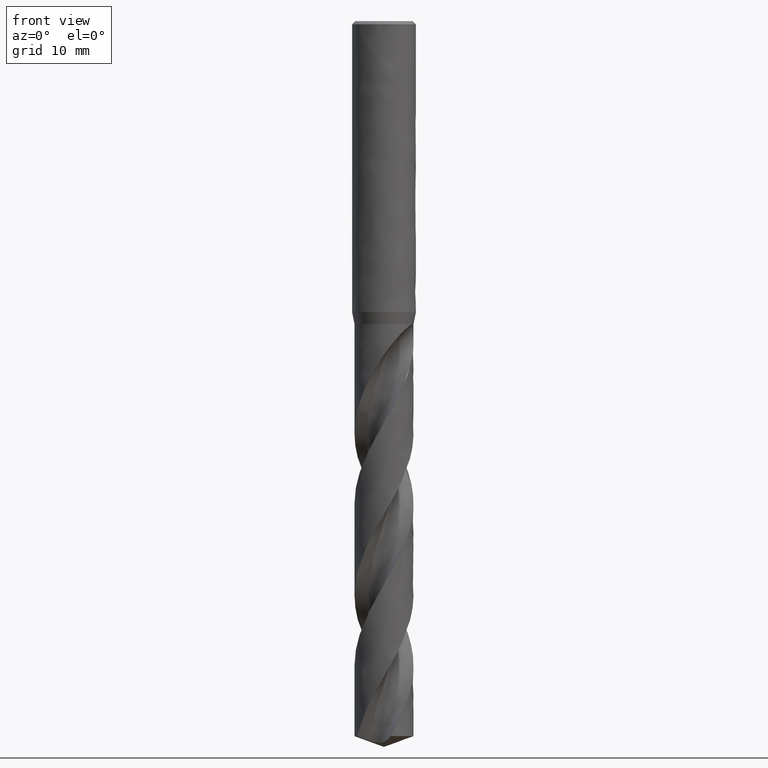
[diagram: clean part render]
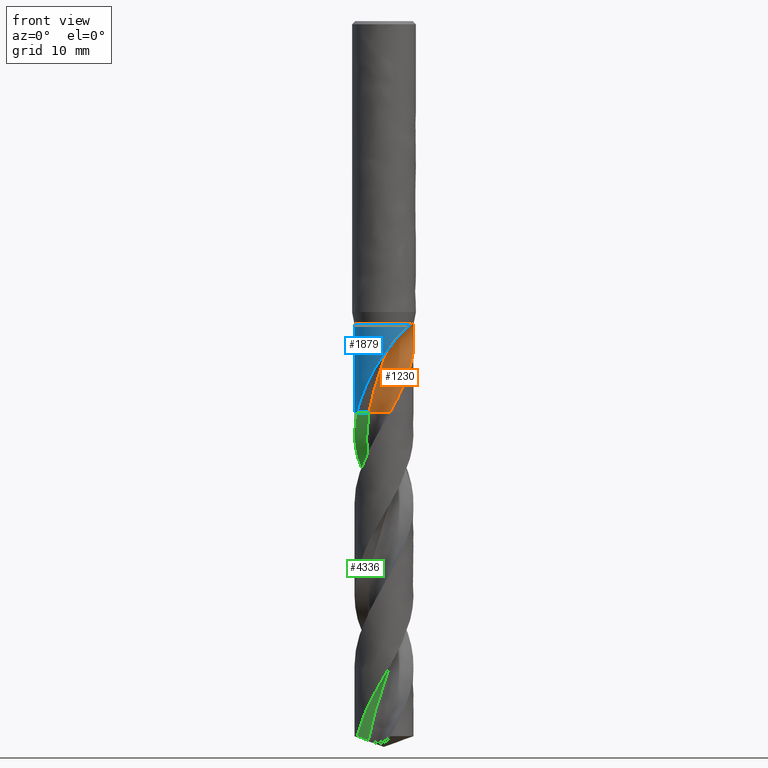
[diagram: same view with three faces highlighted in distinct colors, each labeled with its STEP entity id]
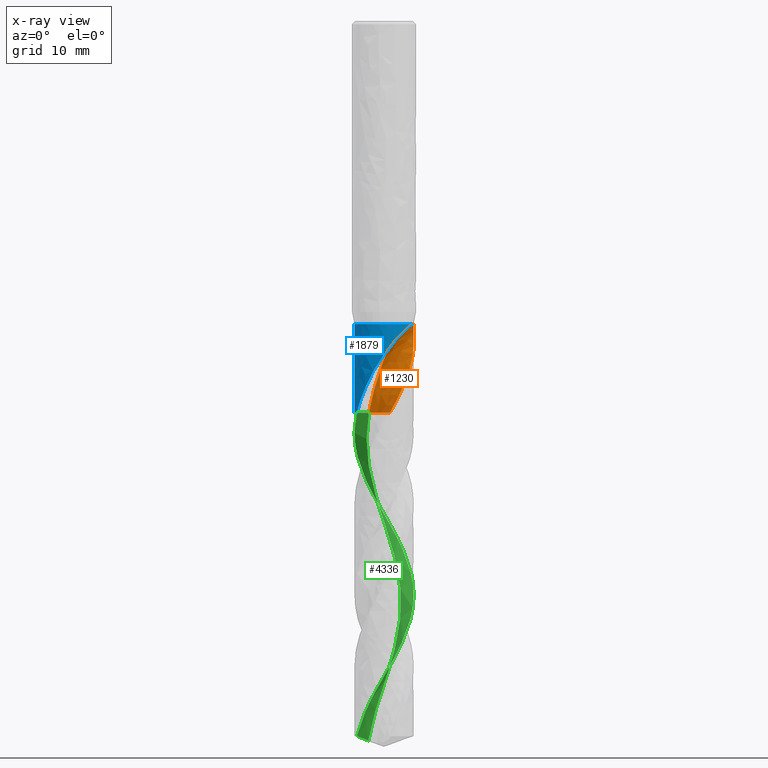
[diagram: x-ray of the same camera — body ghosted, the three highlighted faces saturated]
A machine part, front view with three faces highlighted in distinct colors.
The next image is the same camera in x-ray (body ghosted, the three faces saturated) — at least one of them is partly hidden behind the body in this view.
Their STEP definitions:

[orange] entity #1230 — the highlighted face is a freeform B-spline surface patch.
#72 = EDGE_CURVE('', #73, #75, #77, .T.);
#73 = VERTEX_POINT('', #74);
#74 = CARTESIAN_POINT('', (3.56904741042572, -0.99051839466348, -37.98));
#75 = VERTEX_POINT('', #76);
#76 = CARTESIAN_POINT('', (3.61565032876505, -0.785539750809081, -38.));
#77 = B_SPLINE_CURVE_WITH_KNOTS('', 3, (#78, #79, #80, #81, #82, #83, #84), .UNSPECIFIED., .F., .U., (4, 3, 4), (0., 0.131241650724001, 0.211460515932441), .UNSPECIFIED.);
#78 = CARTESIAN_POINT('', (3.5690474104252, -0.990518394665354, -37.98));
#79 = CARTESIAN_POINT('', (3.58073592494172, -0.948361608849914, -37.980055002763));
#80 = CARTESIAN_POINT('', (3.59125975115104, -0.905776299181568, -37.9824184225281));
#81 = CARTESIAN_POINT('', (3.60041145474067, -0.863300871469245, -37.9875079558327));
#82 = CARTESIAN_POINT('', (3.60600525268998, -0.837338605743929, -37.990618832478));
#83 = CARTESIAN_POINT('', (3.61109956866408, -0.811361940831893, -37.9947547683061));
#84 = CARTESIAN_POINT('', (3.61565032876504, -0.785539750809104, -38.));
#156 = VERTEX_POINT('', #157);
#157 = CARTESIAN_POINT('', (3.49489260508596, -1.21479450069362, -38.));
#164 = EDGE_CURVE('', #165, #156, #167, .T.);
#165 = VERTEX_POINT('', #166);
#166 = CARTESIAN_POINT('', (3.56820673068282, -0.993542568359827, -37.98));
#167 = B_SPLINE_CURVE_WITH_KNOTS('', 3, (#168, #169, #170, #171, #172, #173, #174, #175, #176, #177), .UNSPECIFIED., .F., .U., (4, 3, 3, 4), (0., 0.131905111898747, 0.219562053184844, 0.23419257630801), .UNSPECIFIED.);
#168 = CARTESIAN_POINT('', (3.56820673067712, -0.993542568380354, -37.98));
#169 = CARTESIAN_POINT('', (3.55640221959954, -1.03589664831539, -37.9800552013507));
#170 = CARTESIAN_POINT('', (3.54338487509476, -1.07796858488391, -37.9824265444514));
#171 = CARTESIAN_POINT('', (3.52935109574779, -1.11941599464806, -37.9867140702178));
#172 = CARTESIAN_POINT('', (3.52002501160647, -1.14695968201436, -37.9895633259362));
#173 = CARTESIAN_POINT('', (3.51023594841189, -1.17427333841684, -37.9932631674222));
#174 = CARTESIAN_POINT('', (3.50003509027453, -1.20129019741627, -37.9977107106045));
#175 = CARTESIAN_POINT('', (3.49833249959928, -1.20579948982948, -37.9984530349706));
#176 = CARTESIAN_POINT('', (3.49661826347974, -1.21030100944158, -37.9992162793766));
#177 = CARTESIAN_POINT('', (3.49489260508597, -1.21479450069362, -38.));
#179 = EDGE_CURVE('', #73, #165, #180, .T.);
#180 = LINE('', #181, #182);
#181 = CARTESIAN_POINT('', (3.56904741042572, -0.99051839466348, -37.98));
#182 = VECTOR('', #183, 0.00313884835183095);
#183 = DIRECTION('', (-0.000840679742895478, -0.003024173696347, 0.));
#1175 = VERTEX_POINT('', #1176);
#1176 = CARTESIAN_POINT('', (3.22279870937257, -1.81757213855915, -43.5197669627323));
#1177 = VERTEX_POINT('', #1178);
#1178 = CARTESIAN_POINT('', (2.63015329540276, -2.60236308817234, -45.2458569978374));
#1209 = EDGE_CURVE('', #1177, #1175, #1210, .T.);
#1210 = B_SPLINE_CURVE_WITH_KNOTS('', 3, (#1211, #1212, #1213, #1214, #1215, #1216), .UNSPECIFIED., .F., .U., (4, 1, 1, 4), (45.8041430021626, 46.2661538461538, 46.9465384615385, 47.5302330372677), .UNSPECIFIED.);
#1211 = CARTESIAN_POINT('', (2.63015329540273, -2.60236308817234, -45.2458569978374));
#1212 = CARTESIAN_POINT('', (2.68319373461022, -2.53095204616232, -45.0918533831737));
#1213 = CARTESIAN_POINT('', (2.80434924746775, -2.34757413250175, -44.711054896715));
#1214 = CARTESIAN_POINT('', (2.9538659708788, -2.05904935470846, -44.13569155168));
#1215 = CARTESIAN_POINT('', (3.12893242562828, -1.89203171762551, -43.7143318213087));
#1216 = CARTESIAN_POINT('', (3.22279870937257, -1.81757213855915, -43.5197669627323));
#1230 = ADVANCED_FACE('', (#1231), #1546, .T.);
#1231 = FACE_OUTER_BOUND('', #1232, .T.);
#1232 = EDGE_LOOP('', (#1233, #1313, #1356, #1357, #1469, #1470, #1471, #1472, #1526));
#1233 = ORIENTED_EDGE('', *, *, #1234, .T.);
#1234 = EDGE_CURVE('', #1235, #1237, #1239, .T.);
#1235 = VERTEX_POINT('', #1236);
#1236 = CARTESIAN_POINT('', (-1.90183891064219, -1.13586932365929, -49.1));
#1237 = VERTEX_POINT('', #1238);
#1238 = CARTESIAN_POINT('', (0.727143582491771, -3.62784539505765, -49.1));
#1239 = B_SPLINE_CURVE_WITH_KNOTS('', 3, (#1240, #1241, #1242, #1243, #1244, #1245, #1246, #1247, #1248, #1249, #1250, #1251, #1252, #1253, #1254, #1255, #1256, #1257, #1258, #1259, #1260, #1261, #1262, #1263, #1264, #1265, #1266, #1267, #1268, #1269, #1270, #1271, #1272, #1273, #1274, #1275, #1276, #1277, #1278, #1279, #1280, #1281, #1282, #1283, #1284, #1285, #1286, #1287, #1288, #1289, #1290, #1291, #1292, #1293, #1294, #1295, #1296, #1297, #1298, #1299, #1300, #1301, #1302, #1303, #1304, #1305, #1306, #1307, #1308, #1309, #1310, #1311, #1312), .UNSPECIFIED., .F., .U., (4, 3, 3, 3, 3, 3, 3, 3, 3, 3, 3, 3, 3, 3, 3, 3, 3, 3, 3, 3, 3, 3, 3, 3, 4), (0., 0.198131175392014, 0.396054144535818, 0.593773612337969, 0.791293336766626, 0.988616195694019, 1.1857442372197, 1.38267871536812, 1.5794201124808, 1.77596814913478, 1.97232178198284, 2.10329023730551, 2.12922146834169, 2.15518577085952, 2.353290731999, 2.55118812703353, 2.74888253870221, 2.94637761210929, 3.14367611938441, 3.34078000809429, 3.53769043522236, 3.73440778797182, 3.93093169216719, 4.12726100859794, 4.23516525426948), .UNSPECIFIED.);
#1240 = CARTESIAN_POINT('', (-1.90183891064219, -1.13586932365929, -49.1));
#1241 = CARTESIAN_POINT('', (-1.83705280506126, -1.12304223697551, -49.1));
#1242 = CARTESIAN_POINT('', (-1.77162879221972, -1.11309902186006, -49.1));
#1243 = CARTESIAN_POINT('', (-1.705957085298, -1.10609898335135, -49.1));
#1244 = CARTESIAN_POINT('', (-1.64035438952349, -1.09910630083674, -49.1));
#1245 = CARTESIAN_POINT('', (-1.57437430080287, -1.0950367198774, -49.1));
#1246 = CARTESIAN_POINT('', (-1.50840952354241, -1.09391446205907, -49.1));
#1247 = CARTESIAN_POINT('', (-1.44251257024767, -1.09279335812891, -49.1));
#1248 = CARTESIAN_POINT('', (-1.37650036249361, -1.09461128689216, -49.1));
#1249 = CARTESIAN_POINT('', (-1.31076498953027, -1.09935745049266, -49.1));
#1250 = CARTESIAN_POINT('', (-1.24509602482354, -1.10409881934665, -49.1));
#1251 = CARTESIAN_POINT('', (-1.17957351544245, -1.11177187100981, -49.1));
#1252 = CARTESIAN_POINT('', (-1.11458585723406, -1.12233112216003, -49.1));
#1253 = CARTESIAN_POINT('', (-1.04966297143231, -1.13287984903336, -49.1));
#1254 = CARTESIAN_POINT('', (-0.985145780865046, -1.14632982551928, -49.1));
#1255 = CARTESIAN_POINT('', (-0.921415961347195, -1.16260148320059, -49.1));
#1256 = CARTESIAN_POINT('', (-0.857749062455559, -1.17885707582949, -49.1));
#1257 = CARTESIAN_POINT('', (-0.794742615462946, -1.19796077750074, -49.1));
#1258 = CARTESIAN_POINT('', (-0.732768624247368, -1.21979979577093, -49.1));
#1259 = CARTESIAN_POINT('', (-0.670855486347987, -1.24161736993759, -49.1));
#1260 = CARTESIAN_POINT('', (-0.609851104028112, -1.26620775625234, -49.1));
#1261 = CARTESIAN_POINT('', (-0.550114954585282, -1.2934260522462, -49.1));
#1262 = CARTESIAN_POINT('', (-0.490437372426931, -1.32061766252799, -49.1));
#1263 = CARTESIAN_POINT('', (-0.431908485852878, -1.35048535336914, -49.1));
#1264 = CARTESIAN_POINT('', (-0.374872509979698, -1.3828534694431, -49.1));
#1265 = CARTESIAN_POINT('', (-0.317892589937263, -1.41518977363678, -49.1));
#1266 = CARTESIAN_POINT('', (-0.262291105066224, -1.45008487842868, -49.1));
#1267 = CARTESIAN_POINT('', (-0.208394412596436, -1.48733396429351, -49.1));
#1268 = CARTESIAN_POINT('', (-0.154551028835915, -1.52454620743946, -49.1));
#1269 = CARTESIAN_POINT('', (-0.102303870896427, -1.56418046668665, -49.1));
#1270 = CARTESIAN_POINT('', (-0.0519590020670209, -1.60600456497086, -49.1));
#1271 = CARTESIAN_POINT('', (-0.0183788252789887, -1.63390136254009, -49.1));
#1272 = CARTESIAN_POINT('', (0.0143923960344724, -1.66280162208258, -49.1));
#1273 = CARTESIAN_POINT('', (0.0462691847600613, -1.69262996310715, -49.1));
#1274 = CARTESIAN_POINT('', (0.0525806616046054, -1.69853585548886, -49.1));
#1275 = CARTESIAN_POINT('', (0.0588577542345861, -1.70447870913471, -49.1));
#1276 = CARTESIAN_POINT('', (0.0650998204049517, -1.71045791599752, -49.1));
#1277 = CARTESIAN_POINT('', (0.0713498474151432, -1.71644474846167, -49.1));
#1278 = CARTESIAN_POINT('', (0.077564972130027, -1.72246823150455, -49.1));
#1279 = CARTESIAN_POINT('', (0.0837445570218338, -1.72852774725639, -49.1));
#1280 = CARTESIAN_POINT('', (0.130894154974988, -1.77476123000522, -49.1));
#1281 = CARTESIAN_POINT('', (0.176023760110291, -1.82314846383146, -49.1));
#1282 = CARTESIAN_POINT('', (0.218864273769271, -1.87340092549918, -49.1));
#1283 = CARTESIAN_POINT('', (0.261659900927163, -1.92360073473622, -49.1));
#1284 = CARTESIAN_POINT('', (0.302256166961163, -1.97576147737417, -49.1));
#1285 = CARTESIAN_POINT('', (0.340411510828305, -2.02957277995692, -49.1));
#1286 = CARTESIAN_POINT('', (0.378527718757744, -2.08332888828451, -49.1));
#1287 = CARTESIAN_POINT('', (0.41428350385439, -2.13883862330547, -49.1));
#1288 = CARTESIAN_POINT('', (0.447466543099706, -2.19577236019223, -49.1));
#1289 = CARTESIAN_POINT('', (0.480616123385299, -2.25264868993207, -49.1));
#1290 = CARTESIAN_POINT('', (0.511263669896952, -2.31105855486791, -49.1));
#1291 = CARTESIAN_POINT('', (0.539227559352313, -2.37065580685417, -49.1));
#1292 = CARTESIAN_POINT('', (0.567163616449682, -2.43019374191117, -49.1));
#1293 = CARTESIAN_POINT('', (0.592476468653099, -2.49103413198755, -49.1));
#1294 = CARTESIAN_POINT('', (0.615016405126227, -2.55281714147063, -49.1));
#1295 = CARTESIAN_POINT('', (0.637534107826999, -2.61453920715424, -49.1));
#1296 = CARTESIAN_POINT('', (0.657328700556203, -2.6773235327564, -49.1));
#1297 = CARTESIAN_POINT('', (0.674283340293188, -2.74079951654997, -49.1));
#1298 = CARTESIAN_POINT('', (0.691221338697301, -2.80421319734023, -49.1));
#1299 = CARTESIAN_POINT('', (0.705358245133915, -2.86844176460755, -49.1));
#1300 = CARTESIAN_POINT('', (0.71661077611817, -2.93310683437287, -49.1));
#1301 = CARTESIAN_POINT('', (0.727852273784082, -2.99770849882064, -49.1));
#1302 = CARTESIAN_POINT('', (0.736237103467275, -3.06287248209454, -49.1));
#1303 = CARTESIAN_POINT('', (0.741715965054309, -3.12821564084054, -49.1));
#1304 = CARTESIAN_POINT('', (0.747189438820506, -3.19349454221726, -49.1));
#1305 = CARTESIAN_POINT('', (0.749773379779972, -3.25908001661995, -49.1));
#1306 = CARTESIAN_POINT('', (0.749452625009428, -3.32458719940473, -49.1));
#1307 = CARTESIAN_POINT('', (0.749132187833602, -3.39002952037885, -49.1));
#1308 = CARTESIAN_POINT('', (0.745912189610335, -3.45552152259136, -49.1));
#1309 = CARTESIAN_POINT('', (0.739811488389775, -3.52067964947573, -49.1));
#1310 = CARTESIAN_POINT('', (0.736458491622712, -3.55649110473188, -49.1));
#1311 = CARTESIAN_POINT('', (0.732233210238269, -3.5922341000473, -49.1));
#1312 = CARTESIAN_POINT('', (0.727143494629664, -3.62784538249981, -49.1));
#1313 = ORIENTED_EDGE('', *, *, #1314, .F.);
#1314 = EDGE_CURVE('', #1177, #1237, #1315, .T.);
#1315 = B_SPLINE_CURVE_WITH_KNOTS('', 3, (#1316, #1317, #1318, #1319, #1320, #1321, #1322, #1323, #1324, #1325, #1326, #1327, #1328, #1329, #1330, #1331, #1332, #1333, #1334, #1335, #1336, #1337, #1338, #1339, #1340, #1341, #1342, #1343, #1344, #1345, #1346, #1347, #1348, #1349, #1350, #1351, #1352, #1353, #1354, #1355), .UNSPECIFIED., .F., .U., (4, 3, 3, 3, 3, 3, 3, 3, 3, 3, 3, 3, 3, 4), (0., 0.295560042018923, 0.738819006292096, 1.03434807998932, 1.47753799284324, 1.77301750903576, 2.06848564616201, 2.36396350563424, 2.56096532839385, 2.75795680938547, 3.20097984470927, 3.49639353476291, 4.16048844135131, 4.43471449933253), .UNSPECIFIED.);
#1316 = CARTESIAN_POINT('', (2.63015329540277, -2.60236308817233, -45.2458569978374));
#1317 = CARTESIAN_POINT('', (2.59712203500068, -2.63574708396934, -45.332463220597));
#1318 = CARTESIAN_POINT('', (2.56332988578325, -2.6686291139198, -45.4189778126348));
#1319 = CARTESIAN_POINT('', (2.52876896547978, -2.70098639745305, -45.5053765519192));
#1320 = CARTESIAN_POINT('', (2.47693706819962, -2.74951344423404, -45.6349509538854));
#1321 = CARTESIAN_POINT('', (2.42337331099367, -2.79685939092431, -45.7642925394977));
#1322 = CARTESIAN_POINT('', (2.36817789169331, -2.84283898124657, -45.8934060107232));
#1323 = CARTESIAN_POINT('', (2.33137806934811, -2.87349443738426, -45.9794883861032));
#1324 = CARTESIAN_POINT('', (2.29384914970067, -2.90354632156435, -46.065479355284));
#1325 = CARTESIAN_POINT('', (2.25562581766955, -2.93294257882125, -46.1513804391796));
#1326 = CARTESIAN_POINT('', (2.19830423174255, -2.97702664990411, -46.2802019233383));
#1327 = CARTESIAN_POINT('', (2.13941121461517, -3.01964277342053, -46.4088450424025));
#1328 = CARTESIAN_POINT('', (2.07906064827211, -3.06063830283947, -46.5373025062846));
#1329 = CARTESIAN_POINT('', (2.03882427188403, -3.08797046642768, -46.6229464890972));
#1330 = CARTESIAN_POINT('', (1.99793522395257, -3.11458609072129, -46.7085181288292));
#1331 = CARTESIAN_POINT('', (1.9564263808907, -3.14044516209963, -46.7940121597225));
#1332 = CARTESIAN_POINT('', (1.91491913635547, -3.16630323763199, -46.8795028981972));
#1333 = CARTESIAN_POINT('', (1.87278411679125, -3.19140939041612, -46.9649219472094));
#1334 = CARTESIAN_POINT('', (1.83008035141639, -3.21571234835451, -47.050279503655));
#1335 = CARTESIAN_POINT('', (1.78737518087891, -3.24001610597901, -47.1356398687813));
#1336 = CARTESIAN_POINT('', (1.74409699491558, -3.26351856373036, -47.220947376712));
#1337 = CARTESIAN_POINT('', (1.70033585872314, -3.28616158573194, -47.3062295710646));
#1338 = CARTESIAN_POINT('', (1.67115931192081, -3.30125820452789, -47.3630891535944));
#1339 = CARTESIAN_POINT('', (1.64176710584522, -3.3159735076751, -47.4199409988578));
#1340 = CARTESIAN_POINT('', (1.61219390275163, -3.33028990028353, -47.4767974626004));
#1341 = CARTESIAN_POINT('', (1.58262225212694, -3.34460554134149, -47.5336509416175));
#1342 = CARTESIAN_POINT('', (1.55287224159846, -3.35852130761173, -47.5905140172518));
#1343 = CARTESIAN_POINT('', (1.52295556687703, -3.37203296859895, -47.6473837435295));
#1344 = CARTESIAN_POINT('', (1.45567460642554, -3.40241995301417, -47.7752806384954));
#1345 = CARTESIAN_POINT('', (1.38753839577412, -3.43076897885617, -47.9032308095597));
#1346 = CARTESIAN_POINT('', (1.31863397039514, -3.45705141010658, -48.0311726954838));
#1347 = CARTESIAN_POINT('', (1.27268757722994, -3.47457688706873, -48.1164860575884));
#1348 = CARTESIAN_POINT('', (1.2263906206759, -3.49118681717829, -48.2018043334084));
#1349 = CARTESIAN_POINT('', (1.17977117923706, -3.50687039461706, -48.2871110519005));
#1350 = CARTESIAN_POINT('', (1.07496989666308, -3.54212733850573, -48.4788819790977));
#1351 = CARTESIAN_POINT('', (0.968515615092697, -3.57270341977046, -48.6706741539092));
#1352 = CARTESIAN_POINT('', (0.860952078002489, -3.59843876137724, -48.8624297982085));
#1353 = CARTESIAN_POINT('', (0.816535648263107, -3.6090657082332, -48.9416118456993));
#1354 = CARTESIAN_POINT('', (0.77191621648385, -3.6188714367068, -49.0208139709795));
#1355 = CARTESIAN_POINT('', (0.727143582491771, -3.62784539505765, -49.1));
#1356 = ORIENTED_EDGE('', *, *, #1209, .T.);
#1357 = ORIENTED_EDGE('', *, *, #1358, .T.);
#1358 = EDGE_CURVE('', #1175, #75, #1359, .T.);
#1359 = B_SPLINE_CURVE_WITH_KNOTS('', 3, (#1360, #1361, #1362, #1363, #1364, #1365, #1366, #1367, #1368, #1369, #1370, #1371, #1372, #1373, #1374, #1375, #1376, #1377, #1378, #1379, #1380, #1381, #1382, #1383, #1384, #1385, #1386, #1387, #1388, #1389, #1390, #1391, #1392, #1393, #1394, #1395, #1396, #1397, #1398, #1399, #1400, #1401, #1402, #1403, #1404, #1405, #1406, #1407, #1408, #1409, #1410, #1411, #1412, #1413, #1414, #1415, #1416, #1417, #1418, #1419, #1420, #1421, #1422, #1423, #1424, #1425, #1426, #1427, #1428, #1429, #1430, #1431, #1432, #1433, #1434, #1435, #1436, #1437, #1438, #1439, #1440, #1441, #1442, #1443, #1444, #1445, #1446, #1447, #1448, #1449, #1450, #1451, #1452, #1453, #1454, #1455, #1456, #1457, #1458, #1459, #1460, #1461, #1462, #1463, #1464, #1465, #1466, #1467, #1468), .UNSPECIFIED., .F., .U., (4, 3, 3, 3, 3, 3, 3, 3, 3, 3, 3, 3, 3, 3, 3, 3, 3, 3, 3, 3, 3, 3, 3, 3, 3, 3, 3, 3, 3, 3, 3, 3, 3, 3, 3, 3, 4), (0., 0.13133045936398, 0.426721623150737, 0.721959448666224, 1.01701635195514, 1.31188000124053, 1.60655670970567, 1.90105275446094, 2.19536432592904, 2.48950990678108, 2.78351498566091, 3.07740949592864, 3.37124822652874, 3.66509118925585, 3.79612683179342, 3.88356872351753, 4.17777693603379, 4.37431814964015, 4.57100770885269, 4.76792201776873, 4.96516243394355, 5.09677074379244, 5.13572499198515, 5.26761467444974, 5.39973894164116, 5.53212311433371, 5.62026745276122, 5.70850087896705, 5.79680949077456, 5.88517633835534, 5.97357711468378, 6.06198253552852, 6.15036229658073, 6.23868938532495, 6.37165443077655, 6.45977666943238, 6.53789027809907), .UNSPECIFIED.);
#1360 = CARTESIAN_POINT('', (3.22279870937257, -1.81757213855915, -43.5197669627323));
#1361 = CARTESIAN_POINT('', (3.23457988643693, -1.79668253454706, -43.483144042833));
#1362 = CARTESIAN_POINT('', (3.24621655590029, -1.77557422090455, -43.4465984223532));
#1363 = CARTESIAN_POINT('', (3.25769139588161, -1.75426530752878, -43.41012009716));
#1364 = CARTESIAN_POINT('', (3.28350084140371, -1.70633686235632, -43.328072299688));
#1365 = CARTESIAN_POINT('', (3.30849342013193, -1.65738439684978, -43.2463557461228));
#1366 = CARTESIAN_POINT('', (3.33249603267909, -1.60762874824325, -43.1648489707758));
#1367 = CARTESIAN_POINT('', (3.35648618541172, -1.55789892791487, -43.083384505794));
#1368 = CARTESIAN_POINT('', (3.37949118972458, -1.50735842102949, -43.0021152721948));
#1369 = CARTESIAN_POINT('', (3.40136997043561, -1.45625627010457, -42.9209060939067));
#1370 = CARTESIAN_POINT('', (3.42323534379372, -1.40518543466205, -42.8397466807369));
#1371 = CARTESIAN_POINT('', (3.44397940470698, -1.35354489320106, -42.7586340276039));
#1372 = CARTESIAN_POINT('', (3.46349619427969, -1.3016121204914, -42.6774228388772));
#1373 = CARTESIAN_POINT('', (3.48300020090212, -1.24971336229259, -42.5962648412034));
#1374 = CARTESIAN_POINT('', (3.50128062350183, -1.19751738390901, -42.5149924778318));
#1375 = CARTESIAN_POINT('', (3.51827427911201, -1.14531484620554, -42.4334656804604));
#1376 = CARTESIAN_POINT('', (3.53525716090207, -1.09314540442707, -42.3519905703227));
#1377 = CARTESIAN_POINT('', (3.55095826169154, -1.04095991653136, -42.2702469765639));
#1378 = CARTESIAN_POINT('', (3.56535864433992, -0.98904890537917, -42.1881120972369));
#1379 = CARTESIAN_POINT('', (3.57975019823978, -0.937169720413404, -42.1060275740853));
#1380 = CARTESIAN_POINT('', (3.59284627684618, -0.885551589614816, -42.0235376150279));
#1381 = CARTESIAN_POINT('', (3.60466508425083, -0.834499628749516, -41.9405288884943));
#1382 = CARTESIAN_POINT('', (3.6164764883158, -0.783479646999742, -41.857572158899));
#1383 = CARTESIAN_POINT('', (3.62701441873306, -0.733015814505482, -41.774076270649));
#1384 = CARTESIAN_POINT('', (3.63633410947883, -0.683428302194644, -41.6899419210876));
#1385 = CARTESIAN_POINT('', (3.64564854395418, -0.633868757053688, -41.605855022982));
#1386 = CARTESIAN_POINT('', (3.65374893706537, -0.585170138607316, -41.5211072442981));
#1387 = CARTESIAN_POINT('', (3.6607261531634, -0.537665352747824, -41.4356196579878));
#1388 = CARTESIAN_POINT('', (3.66770003651505, -0.490183258087985, -41.3501729057925));
#1389 = CARTESIAN_POINT('', (3.67355429415769, -0.4438768012339, -41.2639580903101));
#1390 = CARTESIAN_POINT('', (3.67841163516972, -0.399108810036123, -41.1769146240106));
#1391 = CARTESIAN_POINT('', (3.68326714944645, -0.354357655059925, -41.0899038927758));
#1392 = CARTESIAN_POINT('', (3.68712881696965, -0.311124107420765, -41.0020279937675));
#1393 = CARTESIAN_POINT('', (3.69015040241204, -0.269796233439673, -40.9132587080081));
#1394 = CARTESIAN_POINT('', (3.69317141437305, -0.228476203276666, -40.824506270203));
#1395 = CARTESIAN_POINT('', (3.69535457789735, -0.189036624502809, -40.7348126388656));
#1396 = CARTESIAN_POINT('', (3.69687999110956, -0.151915540132481, -40.644186126012));
#1397 = CARTESIAN_POINT('', (3.69840542629214, -0.114793921111244, -40.5535583078747));
#1398 = CARTESIAN_POINT('', (3.69927437195055, -0.0799654880723994, -40.4619311562664));
#1399 = CARTESIAN_POINT('', (3.6996893232972, -0.0479469611207538, -40.3693655864317));
#1400 = CARTESIAN_POINT('', (3.6998743657288, -0.033668694208126, -40.3280871130337));
#1401 = CARTESIAN_POINT('', (3.69996948098932, -0.0199459815620363, -40.2866111234687));
#1402 = CARTESIAN_POINT('', (3.69999369418016, -0.00683103411526467, -40.244948033329));
#1403 = CARTESIAN_POINT('', (3.7000098519764, 0.00192075121886126, -40.2171456785929));
#1404 = CARTESIAN_POINT('', (3.69999445266712, 0.0104028496350793, -40.1892568031674));
#1405 = CARTESIAN_POINT('', (3.69995325630272, 0.018598418613027, -40.1612854626835));
#1406 = CARTESIAN_POINT('', (3.69981464643856, 0.0461733446812253, -40.0671726990735));
#1407 = CARTESIAN_POINT('', (3.69938380313512, 0.0705404710696561, -39.9720348512439));
#1408 = CARTESIAN_POINT('', (3.69888219893212, 0.0909421707631891, -39.8761123456599));
#1409 = CARTESIAN_POINT('', (3.69854711005759, 0.104571208454235, -39.8120328099515));
#1410 = CARTESIAN_POINT('', (3.69818040480272, 0.116440585234922, -39.7475462988309));
#1411 = CARTESIAN_POINT('', (3.69784478619809, 0.126269304217732, -39.6827749047371));
#1412 = CARTESIAN_POINT('', (3.69750891427485, 0.136105441732507, -39.6179546224151));
#1413 = CARTESIAN_POINT('', (3.69720432321083, 0.143908607176527, -39.5527822471705));
#1414 = CARTESIAN_POINT('', (3.69698512712611, 0.149335092353892, -39.4874443820143));
#1415 = CARTESIAN_POINT('', (3.69676568057434, 0.154767778170169, -39.4220318577564));
#1416 = CARTESIAN_POINT('', (3.69663238185845, 0.157826172337856, -39.3563625117353));
#1417 = CARTESIAN_POINT('', (3.69662129954316, 0.158085317989521, -39.290724921267));
#1418 = CARTESIAN_POINT('', (3.69661019887459, 0.158344892808972, -39.224978629228));
#1419 = CARTESIAN_POINT('', (3.69672318338171, 0.155795347485869, -39.1591375863314));
#1420 = CARTESIAN_POINT('', (3.69696113824582, 0.149927790286541, -39.0936535610336));
#1421 = CARTESIAN_POINT('', (3.69711991319718, 0.146012673390515, -39.0499594639582));
#1422 = CARTESIAN_POINT('', (3.69733385392006, 0.140613530671772, -39.0063665260317));
#1423 = CARTESIAN_POINT('', (3.69758857314636, 0.13356176001178, -38.9630683145478));
#1424 = CARTESIAN_POINT('', (3.69766396653127, 0.131474532960518, -38.9502526399268));
#1425 = CARTESIAN_POINT('', (3.69774285100416, 0.129241983247894, -38.9374597460681));
#1426 = CARTESIAN_POINT('', (3.69782458204331, 0.126859609160037, -38.9246956820342));
#1427 = CARTESIAN_POINT('', (3.69810130361541, 0.118793465503386, -38.8814796419234));
#1428 = CARTESIAN_POINT('', (3.69841264441417, 0.108999087865126, -38.8385413526044));
#1429 = CARTESIAN_POINT('', (3.69872033222744, 0.0973031549713363, -38.7961635771421));
#1430 = CARTESIAN_POINT('', (3.69902856730763, 0.0855864191824924, -38.7537104267248));
#1431 = CARTESIAN_POINT('', (3.6993341472976, 0.0719348132811771, -38.7117321555944));
#1432 = CARTESIAN_POINT('', (3.6995732118795, 0.05619652963992, -38.6705994901943));
#1433 = CARTESIAN_POINT('', (3.69981274673232, 0.040427286761699, -38.6293859115279));
#1434 = CARTESIAN_POINT('', (3.69998628969851, 0.022517769931215, -38.5889134760874));
#1435 = CARTESIAN_POINT('', (3.69999923556182, 0.00237841164917672, -38.5496490959855));
#1436 = CARTESIAN_POINT('', (3.7000078552067, -0.0110308228236446, -38.5235059949075));
#1437 = CARTESIAN_POINT('', (3.69994464058721, -0.0254505421022478, -38.4978535985128));
#1438 = CARTESIAN_POINT('', (3.69977416722617, -0.040879230998099, -38.4728496813155));
#1439 = CARTESIAN_POINT('', (3.69960352156713, -0.0563235137215354, -38.4478204925752));
#1440 = CARTESIAN_POINT('', (3.69932498455918, -0.0728052746202066, -38.4233997943518));
#1441 = CARTESIAN_POINT('', (3.69889813992871, -0.0902914748632873, -38.3997552202914));
#1442 = CARTESIAN_POINT('', (3.69847093157473, -0.107792575473983, -38.3760904981804));
#1443 = CARTESIAN_POINT('', (3.69789414985033, -0.126333088908066, -38.3531596442108));
#1444 = CARTESIAN_POINT('', (3.69712457035511, -0.145842076498864, -38.3311301809234));
#1445 = CARTESIAN_POINT('', (3.69635448335494, -0.165363929437163, -38.3090861901419));
#1446 = CARTESIAN_POINT('', (3.69538950024689, -0.185895515883377, -38.2879006268764));
#1447 = CARTESIAN_POINT('', (3.69418678930019, -0.207325747944356, -38.2677280726034));
#1448 = CARTESIAN_POINT('', (3.69298361656858, -0.228764208214847, -38.2475477730104));
#1449 = CARTESIAN_POINT('', (3.69153966704499, -0.25114781848753, -38.2283385799706));
#1450 = CARTESIAN_POINT('', (3.68981619722637, -0.274329055490571, -38.2102289251465));
#1451 = CARTESIAN_POINT('', (3.68809263685784, -0.297511510419941, -38.1921183188536));
#1452 = CARTESIAN_POINT('', (3.68608554293769, -0.321541642601306, -38.1750681999129));
#1453 = CARTESIAN_POINT('', (3.68376359894954, -0.34624521232012, -38.1591706165601));
#1454 = CARTESIAN_POINT('', (3.68144232890875, -0.370941611794533, -38.1432776475024));
#1455 = CARTESIAN_POINT('', (3.67880132132629, -0.396362961891374, -38.1285025467793));
#1456 = CARTESIAN_POINT('', (3.67581885421523, -0.422321857113677, -38.1148963880326));
#1457 = CARTESIAN_POINT('', (3.67283816458608, -0.448265281430561, -38.1012983382441));
#1458 = CARTESIAN_POINT('', (3.66951041841993, -0.474797111060324, -38.088839981507));
#1459 = CARTESIAN_POINT('', (3.66582409530805, -0.501730706912488, -38.0775331176452));
#1460 = CARTESIAN_POINT('', (3.66027481108406, -0.542275763333728, -38.0605120917212));
#1461 = CARTESIAN_POINT('', (3.65389129275339, -0.583865459403409, -38.0460497679151));
#1462 = CARTESIAN_POINT('', (3.64667348884791, -0.625917299436455, -38.0340515373905));
#1463 = CARTESIAN_POINT('', (3.64188990804914, -0.653787047239141, -38.0260997412613));
#1464 = CARTESIAN_POINT('', (3.63673184168764, -0.681916237991292, -38.019209858615));
#1465 = CARTESIAN_POINT('', (3.63120809357449, -0.710160391150608, -38.0133283138673));
#1466 = CARTESIAN_POINT('', (3.62631171435098, -0.735196667585044, -38.0081147753577));
#1467 = CARTESIAN_POINT('', (3.62112267663404, -0.760351851213621, -38.0036869735234));
#1468 = CARTESIAN_POINT('', (3.61565032876505, -0.78553975080908, -38.));
#1469 = ORIENTED_EDGE('', *, *, #72, .F.);
#1470 = ORIENTED_EDGE('', *, *, #179, .T.);
#1471 = ORIENTED_EDGE('', *, *, #164, .T.);
#1472 = ORIENTED_EDGE('', *, *, #1473, .F.);
#1473 = EDGE_CURVE('', #1474, #156, #1476, .T.);
#1474 = VERTEX_POINT('', #1475);
#1475 = CARTESIAN_POINT('', (1.24992992825555, -3.48248118077486, -40.1837766719755));
#1476 = B_SPLINE_CURVE_WITH_KNOTS('', 3, (#1477, #1478, #1479, #1480, #1481, #1482, #1483, #1484, #1485, #1486, #1487, #1488, #1489, #1490, #1491, #1492, #1493, #1494, #1495, #1496, #1497, #1498, #1499, #1500, #1501, #1502, #1503, #1504, #1505, #1506, #1507, #1508, #1509, #1510, #1511, #1512, #1513, #1514, #1515, #1516, #1517, #1518, #1519, #1520, #1521, #1522, #1523, #1524, #1525), .UNSPECIFIED., .F., .U., (4, 3, 3, 3, 3, 3, 3, 3, 3, 3, 3, 3, 3, 3, 3, 3, 4), (0., 0.298448926463183, 0.597056203879035, 0.895795417480714, 1.19464400283679, 1.49357151838296, 1.79254436967524, 2.09153530566243, 2.39051032726756, 2.68942480457233, 2.88787901920324, 3.0862717705071, 3.28457882336695, 3.48276793221613, 3.68079575171105, 3.87860381193015, 4.03412538615486), .UNSPECIFIED.);
#1477 = CARTESIAN_POINT('', (1.24992992825555, -3.48248118077486, -40.1837766719755));
#1478 = CARTESIAN_POINT('', (1.31031597474362, -3.4608074594146, -40.1077461675458));
#1479 = CARTESIAN_POINT('', (1.37140893899496, -3.43710595202568, -40.0328136939244));
#1480 = CARTESIAN_POINT('', (1.43297886838977, -3.41124193846624, -39.9590772781666));
#1481 = CARTESIAN_POINT('', (1.49458146554148, -3.38536420198532, -39.8853017393608));
#1482 = CARTESIAN_POINT('', (1.55669874993096, -3.35730568698522, -39.8126742855172));
#1483 = CARTESIAN_POINT('', (1.61907634901225, -3.32694931973259, -39.7412957632056));
#1484 = CARTESIAN_POINT('', (1.68148150891716, -3.29657953986877, -39.6698857031163));
#1485 = CARTESIAN_POINT('', (1.74419082206987, -3.26388854236522, -39.5996755438313));
#1486 = CARTESIAN_POINT('', (1.80693636700868, -3.22877391057061, -39.5307837198029));
#1487 = CARTESIAN_POINT('', (1.86970488379055, -3.19364642291809, -39.4618666737101));
#1488 = CARTESIAN_POINT('', (1.93255804165734, -3.15606631461196, -39.394215663681));
#1489 = CARTESIAN_POINT('', (1.99521274747664, -3.11594706185884, -39.3279720245361));
#1490 = CARTESIAN_POINT('', (2.05788400130079, -3.07581721303666, -39.2617108894977));
#1491 = CARTESIAN_POINT('', (2.12040913396078, -3.03311288613272, -39.1967998635247));
#1492 = CARTESIAN_POINT('', (2.18248041938375, -2.98777161426481, -39.133396760838));
#1493 = CARTESIAN_POINT('', (2.24456111862073, -2.94242346587908, -39.0699840423522));
#1494 = CARTESIAN_POINT('', (2.30624715631205, -2.89439411719504, -39.0080187602022));
#1495 = CARTESIAN_POINT('', (2.36721634208153, -2.84363970815259, -38.9476997002386));
#1496 = CARTESIAN_POINT('', (2.42818921584181, -2.79288222900528, -38.8873769916099));
#1497 = CARTESIAN_POINT('', (2.48851093492487, -2.73934435636953, -38.8286350204555));
#1498 = CARTESIAN_POINT('', (2.54784009116676, -2.68300407562929, -38.7717257401401));
#1499 = CARTESIAN_POINT('', (2.60716608949734, -2.62666679371156, -38.7148194889334));
#1500 = CARTESIAN_POINT('', (2.66557299097689, -2.56745729252837, -38.6596743730076));
#1501 = CARTESIAN_POINT('', (2.72269451505491, -2.50538112423837, -38.606613411316));
#1502 = CARTESIAN_POINT('', (2.77980447166922, -2.44331752675833, -38.553563194799));
#1503 = CARTESIAN_POINT('', (2.83571198459132, -2.37829802815393, -38.5025181181393));
#1504 = CARTESIAN_POINT('', (2.89001875659672, -2.31036611525514, -38.4538992691873));
#1505 = CARTESIAN_POINT('', (2.92607391151811, -2.2652650062548, -38.4216204194908));
#1506 = CARTESIAN_POINT('', (2.96145646996524, -2.21883959390555, -38.3903826645913));
#1507 = CARTESIAN_POINT('', (2.99603998481029, -2.17111593642946, -38.3603420023938));
#1508 = CARTESIAN_POINT('', (3.03061278878237, -2.12340705946469, -38.3303106441007));
#1509 = CARTESIAN_POINT('', (3.06441687646265, -2.07435923117886, -38.3014492562182));
#1510 = CARTESIAN_POINT('', (3.09731618680947, -2.02401394237492, -38.2739486113056));
#1511 = CARTESIAN_POINT('', (3.13020128585226, -1.97369040090239, -38.2464598456702));
#1512 = CARTESIAN_POINT('', (3.16221531238784, -1.92201955631253, -38.2203024839329));
#1513 = CARTESIAN_POINT('', (3.19321069495888, -1.86906539682276, -38.1957125662112));
#1514 = CARTESIAN_POINT('', (3.22418764288687, -1.81614273205727, -38.1711372734536));
#1515 = CARTESIAN_POINT('', (3.25418382686119, -1.76187460924203, -38.1480976023825));
#1516 = CARTESIAN_POINT('', (3.28303794943366, -1.70635923022627, -38.1268889469266));
#1517 = CARTESIAN_POINT('', (3.31186859007605, -1.6508890304824, -38.1056975514017));
#1518 = CARTESIAN_POINT('', (3.33960029550135, -1.59409233930852, -38.0863027510183));
#1519 = CARTESIAN_POINT('', (3.36605571409175, -1.53612139156717, -38.069077647566));
#1520 = CARTESIAN_POINT('', (3.39248177406151, -1.47821477647123, -38.0518716594898));
#1521 = CARTESIAN_POINT('', (3.4176813170726, -1.41903014411121, -38.0367987820141));
#1522 = CARTESIAN_POINT('', (3.44145923897238, -1.35880767825755, -38.0243318746307));
#1523 = CARTESIAN_POINT('', (3.46015402745344, -1.31145929072025, -38.014530084654));
#1524 = CARTESIAN_POINT('', (3.4779993440003, -1.26339542308041, -38.0063251939517));
#1525 = CARTESIAN_POINT('', (3.49489260508597, -1.21479450069362, -38.));
#1526 = ORIENTED_EDGE('', *, *, #1527, .F.);
#1527 = EDGE_CURVE('', #1235, #1474, #1528, .T.);
#1528 = B_SPLINE_CURVE_WITH_KNOTS('', 3, (#1529, #1530, #1531, #1532, #1533, #1534, #1535, #1536, #1537, #1538, #1539, #1540, #1541, #1542, #1543, #1544, #1545), .UNSPECIFIED., .F., .U., (4, 1, 1, 1, 1, 1, 1, 1, 1, 1, 1, 1, 1, 1, 4), (41.95, 42.1838461538462, 42.8642307692308, 43.5446153846154, 44.225, 44.9053846153846, 45.5857692307692, 46.2661538461538, 46.9465384615385, 47.6269230769231, 48.3073076923077, 48.9876923076923, 49.6680769230769, 50.3484615384615, 50.8662233280245), .UNSPECIFIED.);
#1529 = CARTESIAN_POINT('', (-1.90183891064219, -1.13586932365929, -49.1));
#1530 = CARTESIAN_POINT('', (-1.88875799464321, -1.15911845840782, -49.0220512820513));
#1531 = CARTESIAN_POINT('', (-1.8359697375525, -1.24914489791987, -48.7173076923077));
#1532 = CARTESIAN_POINT('', (-1.73287729542993, -1.39988322709845, -48.1857692307692));
#1533 = CARTESIAN_POINT('', (-1.5807282668871, -1.57797992096787, -47.5053846153846));
#1534 = CARTESIAN_POINT('', (-1.41180110743434, -1.74188564081656, -46.825));
#1535 = CARTESIAN_POINT('', (-1.21795229836202, -1.87622641651524, -46.1446153846154));
#1536 = CARTESIAN_POINT('', (-1.0052895148747, -1.97662447508502, -45.4642307692308));
#1537 = CARTESIAN_POINT('', (-0.778391956418907, -2.03712043182396, -44.7838461538462));
#1538 = CARTESIAN_POINT('', (-0.551907685087425, -2.06792444139408, -44.1034615384615));
#1539 = CARTESIAN_POINT('', (-0.345743515051485, -2.17796810836756, -43.4230769230769));
#1540 = CARTESIAN_POINT('', (-0.12561978974383, -2.34929787558286, -42.7426923076923));
#1541 = CARTESIAN_POINT('', (0.13116520637606, -2.58525184447833, -42.0623076923077));
#1542 = CARTESIAN_POINT('', (0.449906315495053, -2.87646788425788, -41.3819230769231));
#1543 = CARTESIAN_POINT('', (0.821293242117426, -3.1835463458535, -40.7557460701457));
#1544 = CARTESIAN_POINT('', (1.11262183972411, -3.3918350876237, -40.3563639351631));
#1545 = CARTESIAN_POINT('', (1.24992992825554, -3.48248118077486, -40.1837766719755));
#1546 = (
   BOUNDED_SURFACE ()
   B_SPLINE_SURFACE (3, 2, ((#1547, #1548, #1549, #1550, #1551), (#1552, #1553, #1554, #1555, #1556), (#1557, #1558, #1559, #1560, #1561), (#1562, #1563, #1564, #1565, #1566), (#1567, #1568, #1569, #1570, #1571), (#1572, #1573, #1574, #1575, #1576), (#1577, #1578, #1579, #1580, #1581), (#1582, #1583, #1584, #1585, #1586), (#1587, #1588, #1589, #1590, #1591), (#1592, #1593, #1594, #1595, #1596), (#1597, #1598, #1599, #1600, #1601), (#1602, #1603, #1604, #1605, #1606), (#1607, #1608, #1609, #1610, #1611), (#1612, #1613, #1614, #1615, #1616), (#1617, #1618, #1619, #1620, #1621), (#1622, #1623, #1624, #1625, #1626), (#1627, #1628, #1629, #1630, #1631), (#1632, #1633, #1634, #1635, #1636), (#1637, #1638, #1639, #1640, #1641)), .UNSPECIFIED., .F., .F., .U.)
   B_SPLINE_SURFACE_WITH_KNOTS ((4, 1, 1, 1, 1, 1, 1, 1, 1, 1, 1, 1, 1, 1, 1, 1, 4), (3, 2, 3), (41.9499999999992, 42.1838461538462, 42.8642307692308, 43.5446153846154, 44.225, 44.9053846153846, 45.5857692307692, 46.2661538461538, 46.9465384615385, 47.6269230769231, 48.3073076923077, 48.9876923076923, 49.6680769230769, 50.3484615384615, 51.0288461538462, 51.7092307692308, 53.07), (0., 0.5, 1.), .UNSPECIFIED.)
   GEOMETRIC_REPRESENTATION_ITEM ()
   RATIONAL_B_SPLINE_SURFACE (((1., 0.887010833178222, 1., 0.887010833178222, 1.), (1., 0.887010833178222, 1., 0.887010833178222, 1.), (1., 0.887010833178222, 1., 0.887010833178222, 1.), (1., 0.887010833178222, 1., 0.887010833178222, 1.), (1., 0.887010833178222, 1., 0.887010833178222, 1.), (1., 0.887010833178221, 1., 0.887010833178221, 1.), (1., 0.887010833178222, 1., 0.887010833178222, 1.), (1., 0.887010833178222, 1., 0.887010833178222, 1.), (1., 0.887010833178222, 1., 0.887010833178222, 1.), (1., 0.887010833178222, 1., 0.887010833178222, 1.), (1., 0.887010833178222, 1., 0.887010833178222, 1.), (1., 0.887010833178222, 1., 0.887010833178222, 1.), (1., 0.887010833178221, 1., 0.887010833178221, 1.), (1., 0.887010833178222, 1., 0.887010833178222, 1.), (1., 0.887010833178222, 1., 0.887010833178222, 1.), (1., 0.887010833178222, 1., 0.887010833178222, 1.), (1., 0.887010833178222, 1., 0.887010833178222, 1.), (1., 0.887010833178221, 1., 0.887010833178221, 1.), (1., 0.887010833178222, 1., 0.887010833178222, 1.)))
   REPRESENTATION_ITEM ('')
   SURFACE ()
);
#1547 = CARTESIAN_POINT('', (0.723340215024444, -3.65339353329392, -49.1000000000008));
#1548 = CARTESIAN_POINT('', (0.900164868193749, -2.51127760903045, -49.1000000000008));
#1549 = CARTESIAN_POINT('', (0.0660207284421802, -1.71134055116731, -49.1000000000008));
#1550 = CARTESIAN_POINT('', (-0.768123411309388, -0.911403493304163, -49.1000000000008));
#1551 = CARTESIAN_POINT('', (-1.90183891064232, -1.13586932365906, -49.1000000000008));
#1552 = CARTESIAN_POINT('', (0.767546485285367, -3.64582495234563, -49.0220512820518));
#1553 = CARTESIAN_POINT('', (0.930677121565643, -2.5012242164625, -49.0220512820518));
#1554 = CARTESIAN_POINT('', (0.0866429778896125, -1.71107941113472, -49.0220512820518));
#1555 = CARTESIAN_POINT('', (-0.757391165786418, -0.920934605806939, -49.0220512820518));
#1556 = CARTESIAN_POINT('', (-1.8887579946433, -1.15911845840767, -49.0220512820518));
#1557 = CARTESIAN_POINT('', (0.939931508499576, -3.61313597899009, -48.7173076923079));
#1558 = CARTESIAN_POINT('', (1.0493245365132, -2.45977136433207, -48.717307692308));
#1559 = CARTESIAN_POINT('', (0.167288817775211, -1.70861907631481, -48.7173076923079));
#1560 = CARTESIAN_POINT('', (-0.714746900962781, -0.957466788297538, -48.717307692308));
#1561 = CARTESIAN_POINT('', (-1.83596973755255, -1.2491448979198, -48.7173076923079));
#1562 = CARTESIAN_POINT('', (1.23688216606895, -3.53511926925771, -48.1857692307692));
#1563 = CARTESIAN_POINT('', (1.25140288434239, -2.37298772951359, -48.1857692307692));
#1564 = CARTESIAN_POINT('', (0.307769199668826, -1.69452178631777, -48.1857692307692));
#1565 = CARTESIAN_POINT('', (-0.635864485004743, -1.01605584312195, -48.1857692307692));
#1566 = CARTESIAN_POINT('', (-1.73287729542993, -1.39988322709845, -48.1857692307692));
#1567 = CARTESIAN_POINT('', (1.60488296448242, -3.39489500613964, -47.5053846153846));
#1568 = CARTESIAN_POINT('', (1.4972104601341, -2.23459559270303, -47.5053846153846));
#1569 = CARTESIAN_POINT('', (0.48499041229308, -1.65727534209449, -47.5053846153846));
#1570 = CARTESIAN_POINT('', (-0.527229635547941, -1.07995509148594, -47.5053846153846));
#1571 = CARTESIAN_POINT('', (-1.5807282668871, -1.57797992096787, -47.5053846153846));
#1572 = CARTESIAN_POINT('', (1.95989942874646, -3.22008278751814, -46.825));
#1573 = CARTESIAN_POINT('', (1.73014898679162, -2.07307958030728, -46.825));
#1574 = CARTESIAN_POINT('', (0.658799525052282, -1.60338611243566, -46.825));
#1575 = CARTESIAN_POINT('', (-0.412549936687056, -1.13369264456404, -46.825));
#1576 = CARTESIAN_POINT('', (-1.41180110743434, -1.74188564081656, -46.825));
#1577 = CARTESIAN_POINT('', (2.2821928681309, -2.98909748292143, -46.1446153846154));
#1578 = CARTESIAN_POINT('', (1.93394471287346, -1.87524384103633, -46.1446153846154));
#1579 = CARTESIAN_POINT('', (0.821782289226162, -1.52163182680625, -46.1446153846154));
#1580 = CARTESIAN_POINT('', (-0.290380134421139, -1.16801981257616, -46.1446153846154));
#1581 = CARTESIAN_POINT('', (-1.21795229836202, -1.87622641651524, -46.1446153846154));
#1582 = CARTESIAN_POINT('', (2.56137899681836, -2.70913484828813, -45.4642307692308));
#1583 = CARTESIAN_POINT('', (2.10200517438663, -1.6472879576929, -45.4642307692308));
#1584 = CARTESIAN_POINT('', (0.968705123210281, -1.41453460797265, -45.4642307692308));
#1585 = CARTESIAN_POINT('', (-0.164594927966065, -1.1817812582524, -45.4642307692308));
#1586 = CARTESIAN_POINT('', (-1.0052895148747, -1.97662447508502, -45.4642307692308));
#1587 = CARTESIAN_POINT('', (2.78543335657353, -2.38407642530556, -44.7838461538462));
#1588 = CARTESIAN_POINT('', (2.22622426103505, -1.39323781686482, -44.7838461538462));
#1589 = CARTESIAN_POINT('', (1.0938276291763, -1.2829934126317, -44.7838461538462));
#1590 = CARTESIAN_POINT('', (-0.0385690026824529, -1.17274900839857, -44.7838461538462));
#1591 = CARTESIAN_POINT('', (-0.778391956418907, -2.03712043182396, -44.7838461538462));
#1592 = CARTESIAN_POINT('', (2.96224141921679, -2.04288712003992, -44.1034615384615));
#1593 = CARTESIAN_POINT('', (2.31526220486563, -1.13277511689791, -44.1034615384615));
#1594 = CARTESIAN_POINT('', (1.19865006479916, -1.14073066350365, -44.1034615384615));
#1595 = CARTESIAN_POINT('', (0.0820379247326881, -1.14868621010939, -44.1034615384615));
#1596 = CARTESIAN_POINT('', (-0.551907685087426, -2.06792444139408, -44.1034615384615));
#1597 = CARTESIAN_POINT('', (3.25302614053569, -1.7786668394525, -43.4230769230769));
#1598 = CARTESIAN_POINT('', (2.49320988065193, -0.914740035950807, -43.4230769230769));
#1599 = CARTESIAN_POINT('', (1.34970977082176, -1.04161702129796, -43.4230769230769));
#1600 = CARTESIAN_POINT('', (0.206209660991591, -1.16849400664511, -43.4230769230769));
#1601 = CARTESIAN_POINT('', (-0.345743515051485, -2.17796810836756, -43.4230769230769));
#1602 = CARTESIAN_POINT('', (3.64873956017863, -1.52698959791007, -42.7426923076923));
#1603 = CARTESIAN_POINT('', (2.7468198864479, -0.694453768904995, -42.7426923076923));
#1604 = CARTESIAN_POINT('', (1.54752658784119, -0.955740179490691, -42.7426923076923));
#1605 = CARTESIAN_POINT('', (0.348233289234488, -1.21702659007639, -42.7426923076923));
#1606 = CARTESIAN_POINT('', (-0.125619789743831, -2.34929787558286, -42.7426923076923));
#1607 = CARTESIAN_POINT('', (4.16750063839329, -1.2537977724046, -42.0623076923077));
#1608 = CARTESIAN_POINT('', (3.08531291005907, -0.445866972219239, -42.0623076923077));
#1609 = CARTESIAN_POINT('', (1.80277736276241, -0.868933193000106, -42.0623076923077));
#1610 = CARTESIAN_POINT('', (0.520241815465751, -1.29199941378097, -42.0623076923077));
#1611 = CARTESIAN_POINT('', (0.131165206376059, -2.58525184447833, -42.0623076923077));
#1612 = CARTESIAN_POINT('', (4.80878538831229, -0.913748307173513, -41.3819230769231));
#1613 = CARTESIAN_POINT('', (3.50350526841797, -0.136914419016314, -41.3819230769231));
#1614 = CARTESIAN_POINT('', (2.11848228125218, -0.760563684391595, -41.3819230769231));
#1615 = CARTESIAN_POINT('', (0.733459294086395, -1.38421294976688, -41.3819230769231));
#1616 = CARTESIAN_POINT('', (0.449906315495052, -2.87646788425788, -41.3819230769231));
#1617 = CARTESIAN_POINT('', (5.56521338924958, -0.463431862271126, -40.7015384615385));
#1618 = CARTESIAN_POINT('', (3.99156144327099, 0.262371572231918, -40.7015384615385));
#1619 = CARTESIAN_POINT('', (2.49440840091456, -0.610384888862188, -40.7015384615385));
#1620 = CARTESIAN_POINT('', (0.997255358558132, -1.48314134995629, -40.7015384615385));
#1621 = CARTESIAN_POINT('', (0.853443891122867, -3.21012986597275, -40.7015384615385));
#1622 = CARTESIAN_POINT('', (6.41928435235755, 0.140107806224799, -40.0211538461538));
#1623 = CARTESIAN_POINT('', (4.53252513144198, 0.780563637722539, -40.0211538461538));
#1624 = CARTESIAN_POINT('', (2.92569379760858, -0.397628661700834, -40.0211538461538));
#1625 = CARTESIAN_POINT('', (1.31886246377517, -1.57582096112421, -40.0211538461538));
#1626 = CARTESIAN_POINT('', (1.36234050413601, -3.56784347350095, -40.0211538461538));
#1627 = CARTESIAN_POINT('', (7.6526091549255, 1.20221754216335, -39.1139743589744));
#1628 = CARTESIAN_POINT('', (5.29348031938952, 1.6638570847211, -39.1139743589744));
#1629 = CARTESIAN_POINT('', (3.56218663399899, -0.00384255995029631, -39.1139743589744));
#1630 = CARTESIAN_POINT('', (1.83089294860845, -1.6715422046217, -39.1139743589744));
#1631 = CARTESIAN_POINT('', (2.20396325945768, -4.0462881853685, -39.1139743589744));
#1632 = CARTESIAN_POINT('', (8.63139756963101, 2.3422890002425, -38.4335897435897));
#1633 = CARTESIAN_POINT('', (5.86584846230922, 2.57536304315716, -38.4335897435897));
#1634 = CARTESIAN_POINT('', (4.08867158205354, 0.44364361725384, -38.4335897435897));
#1635 = CARTESIAN_POINT('', (2.31149470179785, -1.68807580864948, -38.4335897435897));
#1636 = CARTESIAN_POINT('', (3.03835024563459, -4.36655791478398, -38.4335897435897));
#1637 = CARTESIAN_POINT('', (9.24779282536487, 3.29224505034195, -37.98));
#1638 = CARTESIAN_POINT('', (6.2016766639659, 3.31372934400319, -37.98));
#1639 = CARTESIAN_POINT('', (4.43689730832663, 0.830819947847223, -37.98));
#1640 = CARTESIAN_POINT('', (2.67211795268736, -1.65208944830875, -37.98));
#1641 = CARTESIAN_POINT('', (3.6937624065794, -4.52185038842933, -37.98));

[blue] entity #1879 — the highlighted face is a freeform B-spline surface patch.
#131 = VERTEX_POINT('', #132);
#132 = CARTESIAN_POINT('', (-3.7, 2.55338857622223E-15, -38.));
#155 = EDGE_CURVE('', #156, #131, #158, .T.);
#156 = VERTEX_POINT('', #157);
#157 = CARTESIAN_POINT('', (3.49489260508596, -1.21479450069362, -38.));
#158 = CIRCLE('', #159, 3.7);
#159 = AXIS2_PLACEMENT_3D('', #160, #161, #162);
#160 = CARTESIAN_POINT('', (1.42477179352876E-31, 2.32682891837997E-15, -38.));
#161 = DIRECTION('', (3.74939945665464E-33, 6.12323399573677E-17, -1.));
#162 = DIRECTION('', (-1., 6.12323399573677E-17, 0.));
#508 = VERTEX_POINT('', #509);
#509 = CARTESIAN_POINT('', (-3.7, 2.58676250545928E-15, -38.5450376265269));
#537 = EDGE_CURVE('', #131, #508, #538, .T.);
#538 = LINE('', #539, #540);
#539 = CARTESIAN_POINT('', (-3.7, 2.55338857622223E-15, -38.));
#540 = VECTOR('', #541, 0.545037626526899);
#541 = DIRECTION('', (0., 3.33739292370521E-17, -0.545037626526899));
#886 = VERTEX_POINT('', #887);
#887 = CARTESIAN_POINT('', (-3.7, 2.68951124181927E-15, -40.2230518332603));
#933 = EDGE_CURVE('', #886, #508, #934, .T.);
#934 = B_SPLINE_CURVE_WITH_KNOTS('', 3, (#935, #936, #937, #938, #939, #940, #941, #942, #943, #944, #945, #946, #947, #948, #949, #950, #951, #952, #953, #954, #955, #956, #957, #958, #959, #960, #961, #962, #963, #964, #965, #966, #967, #968), .UNSPECIFIED., .F., .U., (4, 3, 3, 3, 3, 3, 3, 3, 3, 3, 3, 4), (0., 0.294169747375998, 0.490675624478369, 0.687309052380474, 0.884139700024468, 1.01550939335455, 1.21288852861635, 1.27132645634335, 1.31027913683347, 1.44215828490497, 1.5742704559891, 1.71826616153114), .UNSPECIFIED.);
#935 = CARTESIAN_POINT('', (-3.7, 3.08408629370464E-15, -40.2230518332603));
#936 = CARTESIAN_POINT('', (-3.7, -0.0289620484898012, -40.129369961424));
#937 = CARTESIAN_POINT('', (-3.69965944350574, -0.0548505953974921, -40.0346586672722));
#938 = CARTESIAN_POINT('', (-3.69919974180739, -0.0769497902021512, -39.939125910446));
#939 = CARTESIAN_POINT('', (-3.69889266031364, -0.0917120888310278, -39.8753098711028));
#940 = CARTESIAN_POINT('', (-3.69853247885125, -0.104793277217999, -39.8110750072461));
#941 = CARTESIAN_POINT('', (-3.6981833982779, -0.115929084796385, -39.7465275164378));
#942 = CARTESIAN_POINT('', (-3.69783409111842, -0.127072120561445, -39.681938128236));
#943 = CARTESIAN_POINT('', (-3.6974959856977, -0.136278348213699, -39.6169750347996));
#944 = CARTESIAN_POINT('', (-3.69722681265952, -0.143226728481651, -39.5518004547291));
#945 = CARTESIAN_POINT('', (-3.69695736964568, -0.150182077848283, -39.4865605057435));
#946 = CARTESIAN_POINT('', (-3.69675737157365, -0.154884332287961, -39.4210267091671));
#947 = CARTESIAN_POINT('', (-3.69667023224699, -0.156936910951351, -39.3554486659243));
#948 = CARTESIAN_POINT('', (-3.69661207328264, -0.15830685324831, -39.3116802409705));
#949 = CARTESIAN_POINT('', (-3.69660387981808, -0.158496164813945, -39.2678549728196));
#950 = CARTESIAN_POINT('', (-3.69665197136737, -0.157366459532317, -39.2240796761276));
#951 = CARTESIAN_POINT('', (-3.69672422751848, -0.155669110273626, -39.1583085687445));
#952 = CARTESIAN_POINT('', (-3.69692691563607, -0.150992069503635, -39.0925198931262));
#953 = CARTESIAN_POINT('', (-3.69724335312869, -0.142799116753927, -39.0272397263494));
#954 = CARTESIAN_POINT('', (-3.69733704059621, -0.140373433917577, -39.0079122646952));
#955 = CARTESIAN_POINT('', (-3.69744034648019, -0.137638146366741, -38.9886209083095));
#956 = CARTESIAN_POINT('', (-3.69755171477844, -0.134578291484999, -38.9693837470386));
#957 = CARTESIAN_POINT('', (-3.69762594899426, -0.13253869914847, -38.9565609275843));
#958 = CARTESIAN_POINT('', (-3.69770376497915, -0.130354580030115, -38.9437602209376));
#959 = CARTESIAN_POINT('', (-3.69778454096175, -0.128021438143474, -38.9309875911946));
#960 = CARTESIAN_POINT('', (-3.69805801810466, -0.120122295890141, -38.8877442634456));
#961 = CARTESIAN_POINT('', (-3.69836738260786, -0.110504635241504, -38.8447706241547));
#962 = CARTESIAN_POINT('', (-3.6986754425134, -0.0989948026327261, -38.8023455668736));
#963 = CARTESIAN_POINT('', (-3.69898404674341, -0.0874646327992347, -38.7598455469103));
#964 = CARTESIAN_POINT('', (-3.69929234996135, -0.0740097880444795, -38.7178093520585));
#965 = CARTESIAN_POINT('', (-3.69953787431246, -0.0584766323216157, -38.6766031323712));
#966 = CARTESIAN_POINT('', (-3.69980548366197, -0.0415462639895118, -38.6316903992906));
#967 = CARTESIAN_POINT('', (-3.7, -0.0220977662145612, -38.587646913164));
#968 = CARTESIAN_POINT('', (-3.7, 2.88947175201724E-15, -38.5450376265269));
#1473 = EDGE_CURVE('', #1474, #156, #1476, .T.);
#1474 = VERTEX_POINT('', #1475);
#1475 = CARTESIAN_POINT('', (1.24992992825555, -3.48248118077486, -40.1837766719755));
#1476 = B_SPLINE_CURVE_WITH_KNOTS('', 3, (#1477, #1478, #1479, #1480, #1481, #1482, #1483, #1484, #1485, #1486, #1487, #1488, #1489, #1490, #1491, #1492, #1493, #1494, #1495, #1496, #1497, #1498, #1499, #1500, #1501, #1502, #1503, #1504, #1505, #1506, #1507, #1508, #1509, #1510, #1511, #1512, #1513, #1514, #1515, #1516, #1517, #1518, #1519, #1520, #1521, #1522, #1523, #1524, #1525), .UNSPECIFIED., .F., .U., (4, 3, 3, 3, 3, 3, 3, 3, 3, 3, 3, 3, 3, 3, 3, 3, 4), (0., 0.298448926463183, 0.597056203879035, 0.895795417480714, 1.19464400283679, 1.49357151838296, 1.79254436967524, 2.09153530566243, 2.39051032726756, 2.68942480457233, 2.88787901920324, 3.0862717705071, 3.28457882336695, 3.48276793221613, 3.68079575171105, 3.87860381193015, 4.03412538615486), .UNSPECIFIED.);
#1477 = CARTESIAN_POINT('', (1.24992992825555, -3.48248118077486, -40.1837766719755));
#1478 = CARTESIAN_POINT('', (1.31031597474362, -3.4608074594146, -40.1077461675458));
#1479 = CARTESIAN_POINT('', (1.37140893899496, -3.43710595202568, -40.0328136939244));
#1480 = CARTESIAN_POINT('', (1.43297886838977, -3.41124193846624, -39.9590772781666));
#1481 = CARTESIAN_POINT('', (1.49458146554148, -3.38536420198532, -39.8853017393608));
#1482 = CARTESIAN_POINT('', (1.55669874993096, -3.35730568698522, -39.8126742855172));
#1483 = CARTESIAN_POINT('', (1.61907634901225, -3.32694931973259, -39.7412957632056));
#1484 = CARTESIAN_POINT('', (1.68148150891716, -3.29657953986877, -39.6698857031163));
#1485 = CARTESIAN_POINT('', (1.74419082206987, -3.26388854236522, -39.5996755438313));
#1486 = CARTESIAN_POINT('', (1.80693636700868, -3.22877391057061, -39.5307837198029));
#1487 = CARTESIAN_POINT('', (1.86970488379055, -3.19364642291809, -39.4618666737101));
#1488 = CARTESIAN_POINT('', (1.93255804165734, -3.15606631461196, -39.394215663681));
#1489 = CARTESIAN_POINT('', (1.99521274747664, -3.11594706185884, -39.3279720245361));
#1490 = CARTESIAN_POINT('', (2.05788400130079, -3.07581721303666, -39.2617108894977));
#1491 = CARTESIAN_POINT('', (2.12040913396078, -3.03311288613272, -39.1967998635247));
#1492 = CARTESIAN_POINT('', (2.18248041938375, -2.98777161426481, -39.133396760838));
#1493 = CARTESIAN_POINT('', (2.24456111862073, -2.94242346587908, -39.0699840423522));
#1494 = CARTESIAN_POINT('', (2.30624715631205, -2.89439411719504, -39.0080187602022));
#1495 = CARTESIAN_POINT('', (2.36721634208153, -2.84363970815259, -38.9476997002386));
#1496 = CARTESIAN_POINT('', (2.42818921584181, -2.79288222900528, -38.8873769916099));
#1497 = CARTESIAN_POINT('', (2.48851093492487, -2.73934435636953, -38.8286350204555));
#1498 = CARTESIAN_POINT('', (2.54784009116676, -2.68300407562929, -38.7717257401401));
#1499 = CARTESIAN_POINT('', (2.60716608949734, -2.62666679371156, -38.7148194889334));
#1500 = CARTESIAN_POINT('', (2.66557299097689, -2.56745729252837, -38.6596743730076));
#1501 = CARTESIAN_POINT('', (2.72269451505491, -2.50538112423837, -38.606613411316));
#1502 = CARTESIAN_POINT('', (2.77980447166922, -2.44331752675833, -38.553563194799));
#1503 = CARTESIAN_POINT('', (2.83571198459132, -2.37829802815393, -38.5025181181393));
#1504 = CARTESIAN_POINT('', (2.89001875659672, -2.31036611525514, -38.4538992691873));
#1505 = CARTESIAN_POINT('', (2.92607391151811, -2.2652650062548, -38.4216204194908));
#1506 = CARTESIAN_POINT('', (2.96145646996524, -2.21883959390555, -38.3903826645913));
#1507 = CARTESIAN_POINT('', (2.99603998481029, -2.17111593642946, -38.3603420023938));
#1508 = CARTESIAN_POINT('', (3.03061278878237, -2.12340705946469, -38.3303106441007));
#1509 = CARTESIAN_POINT('', (3.06441687646265, -2.07435923117886, -38.3014492562182));
#1510 = CARTESIAN_POINT('', (3.09731618680947, -2.02401394237492, -38.2739486113056));
#1511 = CARTESIAN_POINT('', (3.13020128585226, -1.97369040090239, -38.2464598456702));
#1512 = CARTESIAN_POINT('', (3.16221531238784, -1.92201955631253, -38.2203024839329));
#1513 = CARTESIAN_POINT('', (3.19321069495888, -1.86906539682276, -38.1957125662112));
#1514 = CARTESIAN_POINT('', (3.22418764288687, -1.81614273205727, -38.1711372734536));
#1515 = CARTESIAN_POINT('', (3.25418382686119, -1.76187460924203, -38.1480976023825));
#1516 = CARTESIAN_POINT('', (3.28303794943366, -1.70635923022627, -38.1268889469266));
#1517 = CARTESIAN_POINT('', (3.31186859007605, -1.6508890304824, -38.1056975514017));
#1518 = CARTESIAN_POINT('', (3.33960029550135, -1.59409233930852, -38.0863027510183));
#1519 = CARTESIAN_POINT('', (3.36605571409175, -1.53612139156717, -38.069077647566));
#1520 = CARTESIAN_POINT('', (3.39248177406151, -1.47821477647123, -38.0518716594898));
#1521 = CARTESIAN_POINT('', (3.4176813170726, -1.41903014411121, -38.0367987820141));
#1522 = CARTESIAN_POINT('', (3.44145923897238, -1.35880767825755, -38.0243318746307));
#1523 = CARTESIAN_POINT('', (3.46015402745344, -1.31145929072025, -38.014530084654));
#1524 = CARTESIAN_POINT('', (3.4779993440003, -1.26339542308041, -38.0063251939517));
#1525 = CARTESIAN_POINT('', (3.49489260508597, -1.21479450069362, -38.));
#1647 = VERTEX_POINT('', #1648);
#1648 = CARTESIAN_POINT('', (-3.41056704865029, -1.4345844020694, -49.1));
#1655 = EDGE_CURVE('', #1474, #1647, #1656, .T.);
#1656 = B_SPLINE_CURVE_WITH_KNOTS('', 3, (#1657, #1658, #1659, #1660, #1661, #1662, #1663, #1664, #1665, #1666, #1667, #1668, #1669, #1670, #1671, #1672, #1673, #1674, #1675, #1676, #1677, #1678, #1679, #1680, #1681, #1682, #1683, #1684, #1685, #1686, #1687, #1688, #1689, #1690, #1691, #1692, #1693, #1694, #1695, #1696, #1697, #1698, #1699, #1700, #1701, #1702, #1703, #1704, #1705, #1706, #1707, #1708, #1709, #1710, #1711, #1712, #1713, #1714, #1715, #1716, #1717, #1718, #1719, #1720, #1721, #1722, #1723, #1724, #1725, #1726, #1727, #1728, #1729, #1730, #1731, #1732, #1733, #1734, #1735, #1736, #1737, #1738, #1739, #1740, #1741, #1742, #1743, #1744, #1745, #1746, #1747, #1748, #1749, #1750, #1751, #1752, #1753, #1754, #1755, #1756, #1757, #1758, #1759, #1760, #1761, #1762, #1763, #1764, #1765, #1766, #1767, #1768), .UNSPECIFIED., .F., .U., (4, 3, 3, 3, 3, 3, 3, 3, 3, 3, 3, 3, 3, 3, 3, 3, 3, 3, 3, 3, 3, 3, 3, 3, 3, 3, 3, 3, 3, 3, 3, 3, 3, 3, 3, 3, 3, 4), (0., 0.294277144543268, 0.588592112093782, 0.882947436501729, 1.17735605179881, 1.47182101824766, 1.7663437399214, 2.06093205689114, 2.14851104465765, 2.44417440284583, 2.7398686068457, 3.03560211182067, 3.23272889396059, 3.67662153809366, 3.97240634839, 4.26821356890941, 4.56409605924148, 4.76127917067625, 4.84887873226688, 5.04601631015399, 5.24310145588373, 5.44017411937875, 5.57156112206823, 5.70296025341935, 5.99864274804458, 6.29426701755206, 6.49133080325852, 6.9347112753716, 7.23030054133027, 7.6736281290939, 7.96917282006782, 8.26471765246939, 8.56026674186628, 8.75729750790198, 9.20050050843911, 9.49599203726311, 10.1604980002279, 10.555448820021), .UNSPECIFIED.);
#1657 = CARTESIAN_POINT('', (1.24992992825555, -3.48248118077486, -40.1837766719755));
#1658 = CARTESIAN_POINT('', (1.19038797063701, -3.50385194229546, -40.2587444060092));
#1659 = CARTESIAN_POINT('', (1.13063316269059, -3.52357466607146, -40.3340311483361));
#1660 = CARTESIAN_POINT('', (1.07078065570963, -3.54167033860551, -40.4096111678837));
#1661 = CARTESIAN_POINT('', (1.01092045597425, -3.55976833694964, -40.4852009016196));
#1662 = CARTESIAN_POINT('', (0.950945331803026, -3.57624400774011, -40.5611054420589));
#1663 = CARTESIAN_POINT('', (0.89097181609877, -3.59112367134824, -40.6373049297716));
#1664 = CARTESIAN_POINT('', (0.830990076746756, -3.60600537527551, -40.7135148660588));
#1665 = CARTESIAN_POINT('', (0.770996188597096, -3.61929421203704, -40.7900428013485));
#1666 = CARTESIAN_POINT('', (0.711095418243491, -3.63102510403785, -40.866864103344));
#1667 = CARTESIAN_POINT('', (0.651183803291378, -3.64275811983128, -40.9436993132771));
#1668 = CARTESIAN_POINT('', (0.591348623737728, -3.65293592424541, -41.0208472736099));
#1669 = CARTESIAN_POINT('', (0.531691110517855, -3.66159863488563, -41.0982853347428));
#1670 = CARTESIAN_POINT('', (0.472022178577851, -3.67026300360816, -41.1757382178738));
#1671 = CARTESIAN_POINT('', (0.412515872017729, -3.6774138267489, -41.2535006025084));
#1672 = CARTESIAN_POINT('', (0.353274758725987, -3.6830961085542, -41.331555736862));
#1673 = CARTESIAN_POINT('', (0.294022026110353, -3.68877950486037, -41.4096261806492));
#1674 = CARTESIAN_POINT('', (0.235022853736819, -3.69299506630933, -41.4880100515751));
#1675 = CARTESIAN_POINT('', (0.176367363137275, -3.69579417084069, -41.56668584166));
#1676 = CARTESIAN_POINT('', (0.117698808947098, -3.69859389878096, -41.6453791542018));
#1677 = CARTESIAN_POINT('', (0.0593599264275808, -3.69997721050514, -41.7243820257142));
#1678 = CARTESIAN_POINT('', (0.00143792183376123, -3.69999972059199, -41.8036758845132));
#1679 = CARTESIAN_POINT('', (-0.0157818735196791, -3.7000064126789, -41.8272493784018));
#1680 = CARTESIAN_POINT('', (-0.0329655604907627, -3.69989287495639, -41.8508496273883));
#1681 = CARTESIAN_POINT('', (-0.0501108339437019, -3.69966064718394, -41.8744762369504));
#1682 = CARTESIAN_POINT('', (-0.107992630199055, -3.69887665498651, -41.9542387793577));
#1683 = CARTESIAN_POINT('', (-0.165444101978913, -3.69673929272207, -42.0343129562418));
#1684 = CARTESIAN_POINT('', (-0.222377379127055, -3.69331129222182, -42.1146860295844));
#1685 = CARTESIAN_POINT('', (-0.279316595980259, -3.68988293408693, -42.1950674880468));
#1686 = CARTESIAN_POINT('', (-0.335751943074525, -3.68516304080499, -42.2757626868627));
#1687 = CARTESIAN_POINT('', (-0.39161471675415, -3.6792170245342, -42.3567503546105));
#1688 = CARTESIAN_POINT('', (-0.447484915203852, -3.67327021797319, -42.4377487865));
#1689 = CARTESIAN_POINT('', (-0.502793651737884, -3.66609569116278, -42.5190556169342));
#1690 = CARTESIAN_POINT('', (-0.557471156749231, -3.657762418391, -42.6006553507713));
#1691 = CARTESIAN_POINT('', (-0.593917485748165, -3.65220771722064, -42.6550472025033));
#1692 = CARTESIAN_POINT('', (-0.630087132330354, -3.6461376877616, -42.7095750414887));
#1693 = CARTESIAN_POINT('', (-0.6659584474564, -3.63957406110406, -42.7642360942928));
#1694 = CARTESIAN_POINT('', (-0.746733939994646, -3.62479400148714, -42.887322561778));
#1695 = CARTESIAN_POINT('', (-0.826017335544181, -3.60750559415784, -43.0111209823936));
#1696 = CARTESIAN_POINT('', (-0.903602564583544, -3.58796633279606, -43.1355884815064));
#1697 = CARTESIAN_POINT('', (-0.955300948317803, -3.57494648037992, -43.2185265434448));
#1698 = CARTESIAN_POINT('', (-1.00625738256646, -3.56092484722938, -43.3017792863761));
#1699 = CARTESIAN_POINT('', (-1.0564205675421, -3.54598020080138, -43.3853333046638));
#1700 = CARTESIAN_POINT('', (-1.10658755314619, -3.53103442208784, -43.4688936534463));
#1701 = CARTESIAN_POINT('', (-1.15596813624443, -3.51516376440345, -43.5527694792319));
#1702 = CARTESIAN_POINT('', (-1.20453739460488, -3.49844103351764, -43.6369348643295));
#1703 = CARTESIAN_POINT('', (-1.25311901168658, -3.4817140474388, -43.7211216657833));
#1704 = CARTESIAN_POINT('', (-1.30089764401582, -3.46413101133533, -43.8056101657545));
#1705 = CARTESIAN_POINT('', (-1.34781794765524, -3.44577810951031, -43.8903983678911));
#1706 = CARTESIAN_POINT('', (-1.37908675119512, -3.43354730030746, -43.9469032374137));
#1707 = CARTESIAN_POINT('', (-1.40997621643014, -3.42097388481701, -44.003546359704));
#1708 = CARTESIAN_POINT('', (-1.4404598142343, -3.4080897176536, -44.0603343826469));
#1709 = CARTESIAN_POINT('', (-1.45400230164065, -3.40236586338046, -44.0855627395645));
#1710 = CARTESIAN_POINT('', (-1.46746460453288, -3.39658075274915, -44.1108204601629));
#1711 = CARTESIAN_POINT('', (-1.48084475680078, -3.39073720689994, -44.1361079266799));
#1712 = CARTESIAN_POINT('', (-1.51095598980196, -3.37758665621148, -44.1930158587465));
#1713 = CARTESIAN_POINT('', (-1.54065109604857, -3.36414043583271, -44.2500779019095));
#1714 = CARTESIAN_POINT('', (-1.56994666106527, -3.35041303146494, -44.3072746177945));
#1715 = CARTESIAN_POINT('', (-1.59923443441844, -3.3366892781384, -44.3644561212211));
#1716 = CARTESIAN_POINT('', (-1.62812462269512, -3.322684089937, -44.421775544043));
#1717 = CARTESIAN_POINT('', (-1.65667265354084, -3.30838868922773, -44.4791906192486));
#1718 = CARTESIAN_POINT('', (-1.68521887631919, -3.29409419390656, -44.5366020581151));
#1719 = CARTESIAN_POINT('', (-1.71342466777333, -3.27950909528611, -44.5941118542932));
#1720 = CARTESIAN_POINT('', (-1.74138190348607, -3.26459630983851, -44.6516557031879));
#1721 = CARTESIAN_POINT('', (-1.76002080214728, -3.2546540573365, -44.690019795373));
#1722 = CARTESIAN_POINT('', (-1.77855041859425, -3.24456532426572, -44.7283994393671));
#1723 = CARTESIAN_POINT('', (-1.79700560536631, -3.2343114961738, -44.7667703344306));
#1724 = CARTESIAN_POINT('', (-1.81546249578266, -3.22405672152546, -44.805144771607));
#1725 = CARTESIAN_POINT('', (-1.83385045164655, -3.21363347539465, -44.8435077798287));
#1726 = CARTESIAN_POINT('', (-1.85216527615607, -3.20304289540457, -44.881859069953));
#1727 = CARTESIAN_POINT('', (-1.8933784329244, -3.17921131388045, -44.9681595273414));
#1728 = CARTESIAN_POINT('', (-1.93421771718887, -3.1545340237699, -45.0544099950029));
#1729 = CARTESIAN_POINT('', (-1.97462591975115, -3.12903379288989, -45.1406141300833));
#1730 = CARTESIAN_POINT('', (-2.01502616522298, -3.10353858345679, -45.2268012900433));
#1731 = CARTESIAN_POINT('', (-2.05499935617433, -3.07721878344833, -45.312949797174));
#1732 = CARTESIAN_POINT('', (-2.09451468737629, -3.05008331433176, -45.399046353412));
#1733 = CARTESIAN_POINT('', (-2.12085569372558, -3.03199475117034, -45.4564385064202));
#1734 = CARTESIAN_POINT('', (-2.14699626456914, -3.01354168702691, -45.5138093014936));
#1735 = CARTESIAN_POINT('', (-2.1729276857116, -2.99472624335982, -45.5711542614884));
#1736 = CARTESIAN_POINT('', (-2.23127166660841, -2.95239274070114, -45.7001766252101));
#1737 = CARTESIAN_POINT('', (-2.28856429776366, -2.90821823402358, -45.8290882102714));
#1738 = CARTESIAN_POINT('', (-2.34466827520746, -2.86225971554568, -45.9578634959006));
#1739 = CARTESIAN_POINT('', (-2.38207121591647, -2.83162046642249, -46.043714349844));
#1740 = CARTESIAN_POINT('', (-2.41894971779827, -2.8001853486307, -46.1295150224384));
#1741 = CARTESIAN_POINT('', (-2.45525945222342, -2.76797778572508, -46.215261093841));
#1742 = CARTESIAN_POINT('', (-2.50971713668241, -2.71967257706204, -46.3438638659067));
#1743 = CARTESIAN_POINT('', (-2.56290413755564, -2.66962101631373, -46.47236722441));
#1744 = CARTESIAN_POINT('', (-2.61467582066246, -2.61791335854399, -46.6007561511905));
#1745 = CARTESIAN_POINT('', (-2.64918945461471, -2.58344240713392, -46.6863467319193));
#1746 = CARTESIAN_POINT('', (-2.68307842869501, -2.54823162561459, -46.7718967842485));
#1747 = CARTESIAN_POINT('', (-2.71630290702298, -2.51230939919798, -46.8574006591216));
#1748 = CARTESIAN_POINT('', (-2.74952740124993, -2.47638715559142, -46.942904574911));
#1749 = CARTESIAN_POINT('', (-2.78209252390733, -2.43974767789853, -47.0283689727549));
#1750 = CARTESIAN_POINT('', (-2.81395182732379, -2.40243108402741, -47.1137952615972));
#1751 = CARTESIAN_POINT('', (-2.84581158963815, -2.36511395265217, -47.1992227809104));
#1752 = CARTESIAN_POINT('', (-2.87696828708401, -2.32711583959978, -47.2846206357418));
#1753 = CARTESIAN_POINT('', (-2.90736156164572, -2.28850360494908, -47.3700069227059));
#1754 = CARTESIAN_POINT('', (-2.92762354310351, -2.26276237127754, -47.4269305476909));
#1755 = CARTESIAN_POINT('', (-2.94754658387535, -2.23674801357467, -47.4838529716583));
#1756 = CARTESIAN_POINT('', (-2.96711216413728, -2.21048533255224, -47.5407820304902));
#1757 = CARTESIAN_POINT('', (-3.01112317852762, -2.15140979188678, -47.668838831972));
#1758 = CARTESIAN_POINT('', (-3.05333989132625, -2.09105960469822, -47.7969430863177));
#1759 = CARTESIAN_POINT('', (-3.09370294206055, -2.02953248465894, -47.9250472272869));
#1760 = CARTESIAN_POINT('', (-3.12061372460269, -1.98851123087115, -48.0104565959459));
#1761 = CARTESIAN_POINT('', (-3.14670431666709, -1.94696135384495, -48.0958760682868));
#1762 = CARTESIAN_POINT('', (-3.17196068932058, -1.90490561062875, -48.1812875653876));
#1763 = CARTESIAN_POINT('', (-3.22875761442328, -1.81032999874812, -48.3733622734347));
#1764 = CARTESIAN_POINT('', (-3.28135427559537, -1.71315275517451, -48.5654613551739));
#1765 = CARTESIAN_POINT('', (-3.32948843225468, -1.61384843758089, -48.7575157381102));
#1766 = CARTESIAN_POINT('', (-3.35809709145742, -1.55482666226436, -48.8716637521433));
#1767 = CARTESIAN_POINT('', (-3.38514076358881, -1.49503260565728, -48.9858452227826));
#1768 = CARTESIAN_POINT('', (-3.41056704865029, -1.4345844020694, -49.1));
#1809 = VERTEX_POINT('', #1810);
#1810 = CARTESIAN_POINT('', (-3.7, 3.23306754974901E-15, -49.1));
#1817 = EDGE_CURVE('', #886, #1809, #1818, .T.);
#1818 = LINE('', #1819, #1820);
#1819 = CARTESIAN_POINT('', (-3.7, 2.68951124181927E-15, -40.2230518332603));
#1820 = VECTOR('', #1821, 8.87694816673972);
#1821 = DIRECTION('', (-4.44089209850063E-16, 5.43556307929739E-16, -8.87694816673972));
#1879 = ADVANCED_FACE('', (#1880), #1895, .T.);
#1880 = FACE_OUTER_BOUND('', #1881, .T.);
#1881 = EDGE_LOOP('', (#1882, #1889, #1890, #1891, #1892, #1893, #1894));
#1882 = ORIENTED_EDGE('', *, *, #1883, .F.);
#1883 = EDGE_CURVE('', #1647, #1809, #1884, .T.);
#1884 = CIRCLE('', #1885, 3.7);
#1885 = AXIS2_PLACEMENT_3D('', #1886, #1887, #1888);
#1886 = CARTESIAN_POINT('', (1.84095513321743E-31, 3.00650789190675E-15, -49.1));
#1887 = DIRECTION('', (3.74939945665464E-33, 6.12323399573677E-17, -1.));
#1888 = DIRECTION('', (-1., 6.12323399573677E-17, 0.));
#1889 = ORIENTED_EDGE('', *, *, #1655, .F.);
#1890 = ORIENTED_EDGE('', *, *, #1473, .T.);
#1891 = ORIENTED_EDGE('', *, *, #155, .T.);
#1892 = ORIENTED_EDGE('', *, *, #537, .T.);
#1893 = ORIENTED_EDGE('', *, *, #933, .F.);
#1894 = ORIENTED_EDGE('', *, *, #1817, .T.);
#1895 = (
   BOUNDED_SURFACE ()
   B_SPLINE_SURFACE (2, 1, ((#1896, #1897), (#1898, #1899), (#1900, #1901), (#1902, #1903), (#1904, #1905), (#1906, #1907), (#1908, #1909), (#1910, #1911), (#1912, #1913)), .UNSPECIFIED., .T., .F., .U.)
   B_SPLINE_SURFACE_WITH_KNOTS ((3, 2, 2, 2, 3), (2, 2), (0., 5.81194640914112, 11.6238928182822, 17.4358392274234, 23.2477856365645), (0., 0.214894262756305), .UNSPECIFIED.)
   GEOMETRIC_REPRESENTATION_ITEM ()
   RATIONAL_B_SPLINE_SURFACE (((1., 1.), (0.707106781186548, 0.707106781186548), (1., 1.), (0.707106781186548, 0.707106781186548), (1., 1.), (0.707106781186548, 0.707106781186548), (1., 1.), (0.707106781186548, 0.707106781186548), (1., 1.)))
   REPRESENTATION_ITEM ('')
   SURFACE ()
);
#1896 = CARTESIAN_POINT('', (-3.7, 2.55338857622223E-15, -38.));
#1897 = CARTESIAN_POINT('', (-3.7, 3.23306754974901E-15, -49.1));
#1898 = CARTESIAN_POINT('', (-3.7, 3.7, -38.));
#1899 = CARTESIAN_POINT('', (-3.7, 3.7, -49.1));
#1900 = CARTESIAN_POINT('', (1.4791141972894E-31, 3.7, -38.));
#1901 = CARTESIAN_POINT('', (1.97215226305253E-31, 3.7, -49.1));
#1902 = CARTESIAN_POINT('', (3.7, 3.7, -38.));
#1903 = CARTESIAN_POINT('', (3.7, 3.7, -49.1));
#1904 = CARTESIAN_POINT('', (3.7, 2.55338857622223E-15, -38.));
#1905 = CARTESIAN_POINT('', (3.7, 3.23306754974901E-15, -49.1));
#1906 = CARTESIAN_POINT('', (3.7, -3.7, -38.));
#1907 = CARTESIAN_POINT('', (3.7, -3.7, -49.1));
#1908 = CARTESIAN_POINT('', (4.53119315684521E-16, -3.7, -38.));
#1909 = CARTESIAN_POINT('', (4.53119315684521E-16, -3.7, -49.1));
#1910 = CARTESIAN_POINT('', (-3.7, -3.7, -38.));
#1911 = CARTESIAN_POINT('', (-3.7, -3.7, -49.1));
#1912 = CARTESIAN_POINT('', (-3.7, 2.55338857622223E-15, -38.));
#1913 = CARTESIAN_POINT('', (-3.7, 3.23306754974901E-15, -49.1));

[green] entity #4336 — the highlighted face is a freeform B-spline surface patch.
#1956 = VERTEX_POINT('', #1957);
#1957 = CARTESIAN_POINT('', (-3.41056704865029, -1.4345844020694, -49.1));
#1964 = EDGE_CURVE('', #1956, #1965, #1967, .T.);
#1965 = VERTEX_POINT('', #1966);
#1966 = CARTESIAN_POINT('', (-1.90183891064219, -1.13586932365929, -49.1));
#1967 = LINE('', #1968, #1969);
#1968 = CARTESIAN_POINT('', (-3.4105670486503, -1.4345844020694, -49.1));
#1969 = VECTOR('', #1970, 1.53801537459382);
#1970 = DIRECTION('', (1.50872813800811, 0.29871507841011, -7.105427357601E-15));
#2153 = VERTEX_POINT('', #2154);
#2154 = CARTESIAN_POINT('', (-3.7, 3.3901513117707E-15, -51.6653725160766));
#2160 = EDGE_CURVE('', #1956, #2153, #2161, .T.);
#2161 = B_SPLINE_CURVE_WITH_KNOTS('', 3, (#2162, #2163, #2164, #2165, #2166, #2167, #2168, #2169, #2170, #2171, #2172, #2173, #2174, #2175, #2176, #2177), .UNSPECIFIED., .F., .U., (4, 3, 3, 3, 3, 4), (10.555448820021, 10.8248205130351, 11.4889817246903, 12.1529726024439, 12.8167906537198, 13.5134968469929), .UNSPECIFIED.);
#2162 = CARTESIAN_POINT('', (-3.41056704865029, -1.4345844020694, -49.1));
#2163 = CARTESIAN_POINT('', (-3.42790875579666, -1.39335639563392, -49.1778579612034));
#2164 = CARTESIAN_POINT('', (-3.44450543114325, -1.35180710626195, -49.2557345464567));
#2165 = CARTESIAN_POINT('', (-3.46033944921975, -1.30998125794745, -49.3335948555267));
#2166 = CARTESIAN_POINT('', (-3.49937970810286, -1.2068557001569, -49.5255667610863));
#2167 = CARTESIAN_POINT('', (-3.53381311034533, -1.10196290293011, -49.7175893742738));
#2168 = CARTESIAN_POINT('', (-3.56348716277581, -0.995770676778553, -49.9095656663643));
#2169 = CARTESIAN_POINT('', (-3.59315360485953, -0.889605685183726, -50.1014927233139));
#2170 = CARTESIAN_POINT('', (-3.61807675981476, -0.782092577819868, -50.2934703451501));
#2171 = CARTESIAN_POINT('', (-3.63814604377086, -0.673716085747206, -50.4854048606054));
#2172 = CARTESIAN_POINT('', (-3.65821010400511, -0.56536780238648, -50.6772894184975));
#2173 = CARTESIAN_POINT('', (-3.67343292657949, -0.456102739091876, -50.8692255505896));
#2174 = CARTESIAN_POINT('', (-3.68374822319838, -0.346408758669593, -51.0611172541427));
#2175 = CARTESIAN_POINT('', (-3.69457457994782, -0.231280109519278, -51.2625160230467));
#2176 = CARTESIAN_POINT('', (-3.7, -0.115623119546574, -51.4639660261166));
#2177 = CARTESIAN_POINT('', (-3.7, 4.08881119172036E-15, -51.6653725160766));
#2397 = VERTEX_POINT('', #2398);
#2398 = CARTESIAN_POINT('', (-3.3815212639264, -1.50177026925345, -89.6533101332151));
#2405 = EDGE_CURVE('', #2397, #2153, #2406, .T.);
#2406 = B_SPLINE_CURVE_WITH_KNOTS('', 3, (#2407, #2408, #2409, #2410, #2411, #2412, #2413, #2414, #2415, #2416, #2417, #2418, #2419, #2420, #2421, #2422, #2423, #2424, #2425, #2426, #2427, #2428, #2429, #2430, #2431, #2432, #2433, #2434, #2435, #2436, #2437, #2438, #2439, #2440, #2441, #2442, #2443, #2444, #2445, #2446, #2447, #2448, #2449, #2450, #2451, #2452, #2453, #2454, #2455, #2456, #2457, #2458, #2459, #2460, #2461, #2462, #2463, #2464, #2465, #2466, #2467, #2468, #2469, #2470, #2471, #2472, #2473, #2474, #2475, #2476, #2477, #2478, #2479, #2480, #2481, #2482, #2483, #2484, #2485, #2486, #2487, #2488, #2489, #2490, #2491, #2492, #2493, #2494, #2495, #2496, #2497, #2498, #2499, #2500, #2501, #2502, #2503, #2504, #2505, #2506, #2507, #2508, #2509, #2510, #2511, #2512, #2513, #2514, #2515, #2516, #2517, #2518, #2519, #2520, #2521, #2522, #2523, #2524, #2525, #2526, #2527, #2528, #2529, #2530, #2531, #2532, #2533, #2534, #2535, #2536, #2537, #2538, #2539, #2540, #2541, #2542, #2543, #2544, #2545, #2546, #2547, #2548, #2549, #2550, #2551, #2552, #2553, #2554, #2555, #2556, #2557, #2558, #2559, #2560, #2561, #2562, #2563, #2564, #2565, #2566, #2567, #2568, #2569, #2570, #2571, #2572, #2573, #2574, #2575, #2576, #2577, #2578, #2579, #2580, #2581, #2582, #2583, #2584, #2585, #2586, #2587, #2588, #2589, #2590, #2591, #2592, #2593, #2594, #2595, #2596, #2597, #2598, #2599, #2600, #2601, #2602, #2603, #2604, #2605, #2606, #2607, #2608, #2609, #2610, #2611, #2612, #2613, #2614, #2615, #2616, #2617, #2618, #2619, #2620, #2621, #2622, #2623, #2624, #2625, #2626), .UNSPECIFIED., .F., .U., (4, 3, 3, 3, 3, 3, 3, 3, 3, 3, 3, 3, 3, 3, 3, 3, 3, 3, 3, 3, 3, 3, 3, 3, 3, 3, 3, 3, 3, 3, 3, 3, 3, 3, 3, 3, 3, 3, 3, 3, 3, 3, 3, 3, 3, 3, 3, 3, 3, 3, 3, 3, 3, 3, 3, 3, 3, 3, 3, 3, 3, 3, 3, 3, 3, 3, 3, 3, 3, 3, 3, 3, 3, 4), (0., 0.665620336005873, 1.33107448971425, 1.9963651196503, 2.66149427795278, 3.32646330632008, 3.99127284217253, 4.65592279908666, 5.32041237176843, 5.98474023928805, 6.64890459348174, 7.31290290759948, 7.97673187443186, 8.41948981442448, 8.6164134140726, 8.674804954057, 9.34125819977432, 10.0075208114459, 10.6735995365944, 11.3395001786674, 12.0052275763833, 12.6707856739339, 13.3361775723739, 14.0014055655592, 14.6664712094781, 15.3313755752166, 15.9961191312952, 16.6607016875743, 17.3251223730171, 17.9893796026594, 18.6534710372843, 19.3173936492637, 19.9811438063005, 20.2764380532819, 20.3348123895614, 20.3931966234187, 21.0596613995555, 21.7259339121755, 22.3920210227079, 23.0579285699425, 23.7236614287749, 24.3892235822761, 25.0546181744406, 25.7198475482229, 26.3849133333102, 27.0498166024194, 27.7145577952411, 28.3791367000048, 29.0435524312409, 29.7078033964294, 30.3718872579012, 31.0358009996676, 31.6995409067015, 31.9948328889489, 32.0532071338769, 32.1115980672195, 32.7780677604585, 33.444343833058, 34.1104331850554, 34.7763416642525, 35.4420741586396, 36.1076346691769, 36.7730263628423, 37.4382516114358, 38.1033120740939, 38.768208783685, 39.4329421396208, 40.0975118958018, 40.7619171384801, 41.4261562492823, 42.0902268716398, 42.7541259290097, 43.4178495797499, 43.7462544534713), .UNSPECIFIED.);
#2407 = CARTESIAN_POINT('', (-3.3815212639264, -1.50177026925345, -89.653310133215));
#2408 = CARTESIAN_POINT('', (-3.33701671200804, -1.60198072869227, -89.4604240673042));
#2409 = CARTESIAN_POINT('', (-3.28804008300231, -1.70024055823989, -89.2674949007488));
#2410 = CARTESIAN_POINT('', (-3.23480663935312, -1.79611414058154, -89.0746159686925));
#2411 = CARTESIAN_POINT('', (-3.18158648624733, -1.89196378661698, -88.8817851918116));
#2412 = CARTESIAN_POINT('', (-3.12408646991216, -1.98547375745549, -88.6889111465312));
#2413 = CARTESIAN_POINT('', (-3.06255918288292, -2.07623005742125, -88.4960875618183));
#2414 = CARTESIAN_POINT('', (-3.00104701511325, -2.16696405560642, -88.3033113601442));
#2415 = CARTESIAN_POINT('', (-2.93548080235761, -2.25498815643459, -88.1104917824741));
#2416 = CARTESIAN_POINT('', (-2.86614869594065, -2.33991274468893, -87.9177226395287));
#2417 = CARTESIAN_POINT('', (-2.79683341700926, -2.42481672103116, -87.7250002832762));
#2418 = CARTESIAN_POINT('', (-2.72372139551729, -2.50666267225822, -87.5322347811495));
#2419 = CARTESIAN_POINT('', (-2.64713469278183, -2.58508760359699, -87.3395194293993));
#2420 = CARTESIAN_POINT('', (-2.57056642830545, -2.6634936541229, -87.1468504738962));
#2421 = CARTESIAN_POINT('', (-2.49048833562812, -2.73851798516696, -86.9541387057002));
#2422 = CARTESIAN_POINT('', (-2.407254123453, -2.80982696711355, -86.7614767496321));
#2423 = CARTESIAN_POINT('', (-2.32403987496528, -2.8811188456337, -86.5688610034454));
#2424 = CARTESIAN_POINT('', (-2.23763025272325, -2.94873205173742, -86.3762027077604));
#2425 = CARTESIAN_POINT('', (-2.14840764815503, -3.01236527953516, -86.183594016556));
#2426 = CARTESIAN_POINT('', (-2.05920646032009, -3.07598323299885, -85.991031558579));
#2427 = CARTESIAN_POINT('', (-1.96714976297884, -3.13565442458153, -85.7984265116743));
#2428 = CARTESIAN_POINT('', (-1.87264467649331, -3.19111295876552, -85.6058712319473));
#2429 = CARTESIAN_POINT('', (-1.77816239468202, -3.24655811045495, -85.4133624170254));
#2430 = CARTESIAN_POINT('', (-1.68118731316985, -3.2978194398081, -85.2208106312253));
#2431 = CARTESIAN_POINT('', (-1.58214711343145, -3.34466896889072, -85.0283090190106));
#2432 = CARTESIAN_POINT('', (-1.48313101536781, -3.39150709702589, -84.8358542525338));
#2433 = CARTESIAN_POINT('', (-1.38200417165324, -3.43395765778999, -84.6433562211888));
#2434 = CARTESIAN_POINT('', (-1.27921183687594, -3.47183194817902, -84.4509085423222));
#2435 = CARTESIAN_POINT('', (-1.17644480273311, -3.50969691643737, -84.2585082312714));
#2436 = CARTESIAN_POINT('', (-1.07196494252341, -3.54300559939617, -84.0660647076687));
#2437 = CARTESIAN_POINT('', (-0.966232587540435, -3.57160952327869, -83.8736714035533));
#2438 = CARTESIAN_POINT('', (-0.860526665485003, -3.60020629622385, -83.6813261974706));
#2439 = CARTESIAN_POINT('', (-0.75351871632224, -3.62411420108867, -83.4889380448826));
#2440 = CARTESIAN_POINT('', (-0.645681168232365, -3.64322601947648, -83.2965998081658));
#2441 = CARTESIAN_POINT('', (-0.537871123218386, -3.66233296355288, -83.1043106257275));
#2442 = CARTESIAN_POINT('', (-0.429179735343882, -3.67665548042982, -82.9119788124453));
#2443 = CARTESIAN_POINT('', (-0.320087903222427, -3.68612855638697, -82.7196966141093));
#2444 = CARTESIAN_POINT('', (-0.247326277452168, -3.69244686999747, -82.591449016782));
#2445 = CARTESIAN_POINT('', (-0.17436672199902, -3.69661078059594, -82.4631893486375));
#2446 = CARTESIAN_POINT('', (-0.101352930287196, -3.69861157510791, -82.3349450328453));
#2447 = CARTESIAN_POINT('', (-0.0688788911133532, -3.69950146012603, -82.2779063441644));
#2448 = CARTESIAN_POINT('', (-0.0363919212561439, -3.69996365490692, -82.2208667401326));
#2449 = CARTESIAN_POINT('', (-0.00390471778369914, -3.69999793961821, -82.1638286164157));
#2450 = CARTESIAN_POINT('', (0.00572834724219062, -3.70000810567801, -82.1469157431613));
#2451 = CARTESIAN_POINT('', (0.0153615140189242, -3.69998065152821, -82.1300028634071));
#2452 = CARTESIAN_POINT('', (0.0249944554917919, -3.69991557703613, -82.1130900419172));
#2453 = CARTESIAN_POINT('', (0.134940264629773, -3.69917284775602, -81.9200551471491));
#2454 = CARTESIAN_POINT('', (0.244886317417428, -3.69352434792096, -81.7269771119168));
#2455 = CARTESIAN_POINT('', (0.354341881076594, -3.68299359642606, -81.5339494298375));
#2456 = CARTESIAN_POINT('', (0.463766135777379, -3.67246585717511, -81.3409769619059));
#2457 = CARTESIAN_POINT('', (0.572753306862374, -3.65705358628301, -81.1479609937525));
#2458 = CARTESIAN_POINT('', (0.680818261606314, -3.63682368209725, -80.9549957359392));
#2459 = CARTESIAN_POINT('', (0.788853390740299, -3.6165993613056, -80.7620837359699));
#2460 = CARTESIAN_POINT('', (0.896018170655048, -3.59155047202931, -80.5691280022939));
#2461 = CARTESIAN_POINT('', (1.00183626821627, -3.5617866432012, -80.3762231119136));
#2462 = CARTESIAN_POINT('', (1.1076260742084, -3.53203077204233, -80.1833697966623));
#2463 = CARTESIAN_POINT('', (1.21212002086941, -3.49754837918536, -79.9904728129896));
#2464 = CARTESIAN_POINT('', (1.3148533564987, -3.45849109452433, -79.797626536414));
#2465 = CARTESIAN_POINT('', (1.41755996446089, -3.41944397122032, -79.6048304317816));
#2466 = CARTESIAN_POINT('', (1.51855608352059, -3.3758055998173, -79.4119909079957));
#2467 = CARTESIAN_POINT('', (1.6173916897343, -3.3277686400918, -79.2192018093321));
#2468 = CARTESIAN_POINT('', (1.71620216120888, -3.27974389657558, -79.0264617385835));
#2469 = CARTESIAN_POINT('', (1.81290139814766, -3.22729935269782, -78.8336785369217));
#2470 = CARTESIAN_POINT('', (1.90705765794014, -3.17066729400797, -78.6409454862909));
#2471 = CARTESIAN_POINT('', (2.00119040560546, -3.11404937713056, -78.4482605637825));
#2472 = CARTESIAN_POINT('', (2.09282794000137, -3.05321805778774, -78.2555326621097));
#2473 = CARTESIAN_POINT('', (2.18156074874541, -2.98844318994578, -78.0628548294328));
#2474 = CARTESIAN_POINT('', (2.27027170003424, -2.9236842780258, -77.8702244588745));
#2475 = CARTESIAN_POINT('', (2.35612303135663, -2.85495190569825, -77.6775509456537));
#2476 = CARTESIAN_POINT('', (2.43873162378256, -2.78255064053879, -77.4849277734398));
#2477 = CARTESIAN_POINT('', (2.521320055535, -2.71016704494886, -77.2923516110195));
#2478 = CARTESIAN_POINT('', (2.60070713409486, -2.63408150720149, -77.0997319509984));
#2479 = CARTESIAN_POINT('', (2.67653935005532, -2.55463052271859, -76.9071629285945));
#2480 = CARTESIAN_POINT('', (2.75235317673055, -2.47519880507098, -76.7146406041095));
#2481 = CARTESIAN_POINT('', (2.82464984525198, -2.39236558710128, -76.5220746599928));
#2482 = CARTESIAN_POINT('', (2.89310752147854, -2.30649709931842, -76.3295593907797));
#2483 = CARTESIAN_POINT('', (2.9615486409547, -2.22064937915723, -76.1370906821195));
#2484 = CARTESIAN_POINT('', (3.02618515230616, -2.13172703138556, -75.9445784796016));
#2485 = CARTESIAN_POINT('', (3.08672889013494, -2.04012371164259, -75.752116770872));
#2486 = CARTESIAN_POINT('', (3.14725796436965, -1.94854257807349, -75.5597016760527));
#2487 = CARTESIAN_POINT('', (3.20372539769796, -1.85423761589897, -75.36724334578));
#2488 = CARTESIAN_POINT('', (3.25587880615808, -1.75762715033952, -75.1748352339494));
#2489 = CARTESIAN_POINT('', (3.30801951173312, -1.66104021596774, -74.9824739865177));
#2490 = CARTESIAN_POINT('', (3.35587381002738, -1.56210158391016, -74.7900697478051));
#2491 = CARTESIAN_POINT('', (3.39922724977619, -1.4612508697616, -74.5977155139022));
#2492 = CARTESIAN_POINT('', (3.44257002403646, -1.36042496615036, -74.4054086015472));
#2493 = CARTESIAN_POINT('', (3.48143554310197, -1.25763816303944, -74.2130587489488));
#2494 = CARTESIAN_POINT('', (3.51564933561859, -1.15334719359119, -74.0207589373205));
#2495 = CARTESIAN_POINT('', (3.54985458855736, -1.0490822546057, -73.8285071226867));
#2496 = CARTESIAN_POINT('', (3.57942717249509, -0.943262978672295, -73.6362121207327));
#2497 = CARTESIAN_POINT('', (3.60423421148857, -0.836358624476127, -73.4439674668915));
#2498 = CARTESIAN_POINT('', (3.62903494413666, -0.729481447073633, -73.2517716847106));
#2499 = CARTESIAN_POINT('', (3.64908444757952, -0.621468600737355, -73.0595324352406));
#2500 = CARTESIAN_POINT('', (3.66429228806661, -0.512798232851982, -72.8673437289936));
#2501 = CARTESIAN_POINT('', (3.67949617829322, -0.404156092265565, -72.6752049440653));
#2502 = CARTESIAN_POINT('', (3.68986813599497, -0.294805197567678, -72.4830226805198));
#2503 = CARTESIAN_POINT('', (3.69536060120636, -0.185229660294766, -72.2908909025127));
#2504 = CARTESIAN_POINT('', (3.69780413114225, -0.136480857114012, -72.2054138474697));
#2505 = CARTESIAN_POINT('', (3.69928301946081, -0.0876800633967514, -72.1199334108242));
#2506 = CARTESIAN_POINT('', (3.69979581818946, -0.0388703448374675, -72.0344577300691));
#2507 = CARTESIAN_POINT('', (3.69989718923118, -0.0292215455329962, -72.0175607326399));
#2508 = CARTESIAN_POINT('', (3.69996081557542, -0.0195722882874371, -72.000663728104));
#2509 = CARTESIAN_POINT('', (3.69998669402351, -0.00992290527059581, -71.9837667797425));
#2510 = CARTESIAN_POINT('', (3.70001257685938, -0.000271886166303701, -71.9668669664429));
#2511 = CARTESIAN_POINT('', (3.70000069910479, 0.00937929580227888, -71.9499671461316));
#2512 = CARTESIAN_POINT('', (3.69995106011537, 0.0190303113784337, -71.933067383898));
#2513 = CARTESIAN_POINT('', (3.69938442361461, 0.129198100017659, -71.7401540662148));
#2514 = CARTESIAN_POINT('', (3.6938922736419, 0.23937399710323, -71.5471971516531));
#2515 = CARTESIAN_POINT('', (3.68349752684807, 0.349064420565153, -71.354291031714));
#2516 = CARTESIAN_POINT('', (3.67310577875822, 0.458723200244347, -71.1614405618413));
#2517 = CARTESIAN_POINT('', (3.65780923019062, 0.56795020333926, -70.968546198451));
#2518 = CARTESIAN_POINT('', (3.63767456972589, 0.676257143969422, -70.7757028885371));
#2519 = CARTESIAN_POINT('', (3.61754551208585, 0.784533946281543, -70.5829132406783));
#2520 = CARTESIAN_POINT('', (3.59257137759866, 0.891943201229928, -70.3900795724797));
#2521 = CARTESIAN_POINT('', (3.56286201989413, 0.998005123832523, -70.1972970114412));
#2522 = CARTESIAN_POINT('', (3.53316067121749, 1.10403845433613, -70.0045664205907));
#2523 = CARTESIAN_POINT('', (3.49871237974706, 1.20877608884393, -69.811791898037));
#2524 = CARTESIAN_POINT('', (3.45966939764299, 1.31174984620262, -69.6190683426934));
#2525 = CARTESIAN_POINT('', (3.42063665773575, 1.41469659032017, -69.4263953447733));
#2526 = CARTESIAN_POINT('', (3.37699267696321, 1.51593032482919, -69.2336786316461));
#2527 = CARTESIAN_POINT('', (3.32893106005353, 1.6149978320143, -69.0410126485647));
#2528 = CARTESIAN_POINT('', (3.28088176696733, 1.71403993659024, -68.8483960683481));
#2529 = CARTESIAN_POINT('', (3.22839344391257, 1.81096564129107, -68.655735998559));
#2530 = CARTESIAN_POINT('', (3.17169956478547, 1.9053403556162, -68.463126452106));
#2531 = CARTESIAN_POINT('', (3.11501995885903, 1.99969131024706, -68.2705653968615));
#2532 = CARTESIAN_POINT('', (3.05410879391161, 2.09153935897905, -68.0779609364931));
#2533 = CARTESIAN_POINT('', (2.98923730203709, 2.18047250661641, -67.8854069826051));
#2534 = CARTESIAN_POINT('', (2.92438191784221, 2.26938357203228, -67.6929008401256));
#2535 = CARTESIAN_POINT('', (2.85553621697523, 2.35542503010533, -67.5003511170549));
#2536 = CARTESIAN_POINT('', (2.78300645101565, 2.43821145383358, -67.3078521445877));
#2537 = CARTESIAN_POINT('', (2.71049452108413, 2.52097751928609, -67.1154005101621));
#2538 = CARTESIAN_POINT('', (2.63426522325874, 2.60053026718541, -66.9229050364673));
#2539 = CARTESIAN_POINT('', (2.55465723588944, 2.67651385333941, -66.7304605090103));
#2540 = CARTESIAN_POINT('', (2.47506870158812, 2.75247887208684, -66.5380630074435));
#2541 = CARTESIAN_POINT('', (2.39206491664667, 2.82491294817974, -66.3456216187614));
#2542 = CARTESIAN_POINT('', (2.30601470638678, 2.89349203799283, -66.1532311636205));
#2543 = CARTESIAN_POINT('', (2.21998547165711, 2.96205441102201, -65.9608876054227));
#2544 = CARTESIAN_POINT('', (2.13086983250696, 3.0267967029276, -65.7685002875738));
#2545 = CARTESIAN_POINT('', (2.03906424953936, 3.08742886335062, -65.5761637370635));
#2546 = CARTESIAN_POINT('', (1.94728107973037, 3.14804622120735, -65.3838741430614));
#2547 = CARTESIAN_POINT('', (1.85276453112849, 3.2045849807061, -65.1915410034558));
#2548 = CARTESIAN_POINT('', (1.75593577951823, 3.25679129484954, -64.9992584095468));
#2549 = CARTESIAN_POINT('', (1.65913080219401, 3.30898479081837, -64.8070230266295));
#2550 = CARTESIAN_POINT('', (1.55996699866863, 3.35687369909973, -64.6147442770037));
#2551 = CARTESIAN_POINT('', (1.45888677472225, 3.4002425470164, -64.4225159272244));
#2552 = CARTESIAN_POINT('', (1.35783161729402, 3.44360064004975, -64.2303352474564));
#2553 = CARTESIAN_POINT('', (1.25481097931536, 3.48246237740598, -64.0381111906015));
#2554 = CARTESIAN_POINT('', (1.1502842965771, 3.51665267506591, -63.845937626103));
#2555 = CARTESIAN_POINT('', (1.04578390931766, 3.55083437157039, -63.6538124061587));
#2556 = CARTESIAN_POINT('', (0.939727106619108, 3.58036372748193, -63.4616435843496));
#2557 = CARTESIAN_POINT('', (0.832586080731398, 3.60510754599257, -63.2695254866358));
#2558 = CARTESIAN_POINT('', (0.725472501376907, 3.6298450258292, -63.0774566042035));
#2559 = CARTESIAN_POINT('', (0.617223574304455, 3.64981136954638, -62.8853439564183));
#2560 = CARTESIAN_POINT('', (0.508320768273776, 3.66491609679432, -62.6932821344885));
#2561 = CARTESIAN_POINT('', (0.399446476625258, 3.68001686912154, -62.5012706007412));
#2562 = CARTESIAN_POINT('', (0.289866303632576, 3.69026582556845, -62.3092153307546));
#2563 = CARTESIAN_POINT('', (0.18006777949232, 3.6956157260719, -62.1172108087764));
#2564 = CARTESIAN_POINT('', (0.131219392499731, 3.69799584923121, -62.0317897043732));
#2565 = CARTESIAN_POINT('', (0.0823201670551419, 3.69940744681407, -61.9463651825237));
#2566 = CARTESIAN_POINT('', (0.0334133948442837, 3.69984912463265, -61.8609454685922));
#2567 = CARTESIAN_POINT('', (0.0237453507682258, 3.6999364368887, -61.8440594317118));
#2568 = CARTESIAN_POINT('', (0.0140769010771601, 3.69998585419978, -61.827173388596));
#2569 = CARTESIAN_POINT('', (0.00440838052334035, 3.69999737380734, -61.8102874027257));
#2570 = CARTESIAN_POINT('', (-0.00526290413098556, 3.70000889670819, -61.7933965893783));
#2571 = CARTESIAN_POINT('', (-0.0149342959112238, 3.69998250028301, -61.7765057689355));
#2572 = CARTESIAN_POINT('', (-0.0246054622477467, 3.69991818439646, -61.7596150063613));
#2573 = CARTESIAN_POINT('', (-0.134991422748553, 3.69918408773583, -61.5668251208947));
#2574 = CARTESIAN_POINT('', (-0.245378039164027, 3.69350483789872, -61.3739912057212));
#2575 = CARTESIAN_POINT('', (-0.35526888544858, 3.68290429132125, -61.1812085057014));
#2576 = CARTESIAN_POINT('', (-0.465127806596646, 3.6723068243806, -60.9884818122938));
#2577 = CARTESIAN_POINT('', (-0.574545050070367, 3.65678575057711, -60.7957108752619));
#2578 = CARTESIAN_POINT('', (-0.683029294993616, 3.63640907794773, -60.6029913198733));
#2579 = CARTESIAN_POINT('', (-0.791483137739184, 3.61603811578094, -60.4103257731951));
#2580 = CARTESIAN_POINT('', (-0.899057166182026, 3.59080438827793, -60.2176159305708));
#2581 = CARTESIAN_POINT('', (-1.00526849878091, 3.56081946261796, -60.0249574710019));
#2582 = CARTESIAN_POINT('', (-1.11145099029251, 3.53084267919513, -59.8323513267493));
#2583 = CARTESIAN_POINT('', (-1.21632316887896, 3.49610268643665, -59.6397009830819));
#2584 = CARTESIAN_POINT('', (-1.31941395501802, 3.45675379732253, -59.4471018901698));
#2585 = CARTESIAN_POINT('', (-1.42247749655368, 3.41741530724521, -59.2545536969171));
#2586 = CARTESIAN_POINT('', (-1.52381115458146, 3.37345103515465, -59.0619614851513));
#2587 = CARTESIAN_POINT('', (-1.62295917909796, 3.32505691725446, -58.8694203318685));
#2588 = CARTESIAN_POINT('', (-1.72208158993463, 3.27667530138289, -58.6769289192384));
#2589 = CARTESIAN_POINT('', (-1.81906863523003, 3.22384212583062, -58.4843936560961));
#2590 = CARTESIAN_POINT('', (-1.91348364113659, 3.1667933868667, -58.2919093059192));
#2591 = CARTESIAN_POINT('', (-2.00787469903887, 3.10975911809671, -58.0994737786598));
#2592 = CARTESIAN_POINT('', (-2.09974202298654, 3.04848302602716, -57.9069944252782));
#2593 = CARTESIAN_POINT('', (-2.18867199316876, 2.98323899584306, -57.7145660263699));
#2594 = CARTESIAN_POINT('', (-2.27757971787448, 2.91801128619227, -57.5221857626564));
#2595 = CARTESIAN_POINT('', (-2.36359549593478, 2.84878541135486, -57.3297615044943));
#2596 = CARTESIAN_POINT('', (-2.44633249733552, 2.77587055038238, -57.1373883901209));
#2597 = CARTESIAN_POINT('', (-2.5290490035819, 2.70297375147773, -56.9450629293561));
#2598 = CARTESIAN_POINT('', (-2.60852873825018, 2.62635422532616, -56.7526933174128));
#2599 = CARTESIAN_POINT('', (-2.68441454176488, 2.54635397538545, -56.5603749579436));
#2600 = CARTESIAN_POINT('', (-2.76028166046254, 2.4663734233324, -56.3681039516445));
#2601 = CARTESIAN_POINT('', (-2.83259347287396, 2.38297495588712, -56.1757887919501));
#2602 = CARTESIAN_POINT('', (-2.90102490364915, 2.29653097266453, -55.9835248449498));
#2603 = CARTESIAN_POINT('', (-2.9694395220019, 2.21010822723789, -55.7913081338857));
#2604 = CARTESIAN_POINT('', (-3.03400902718962, 2.12059929679261, -55.5990473882315));
#2605 = CARTESIAN_POINT('', (-3.094442762904, 2.02840429577318, -55.4068377102276));
#2606 = CARTESIAN_POINT('', (-3.15486162506908, 1.93623198517454, -55.2146753375919));
#2607 = CARTESIAN_POINT('', (-3.21117648238287, 1.84132954013168, -55.0224691021313));
#2608 = CARTESIAN_POINT('', (-3.26313336974046, 1.74412173063875, -54.8303137617604));
#2609 = CARTESIAN_POINT('', (-3.31507739522847, 1.64693798483077, -54.6382059892298));
#2610 = CARTESIAN_POINT('', (-3.36269138560089, 1.54740176522561, -54.4460544759029));
#2611 = CARTESIAN_POINT('', (-3.4057602400015, 1.44595891629913, -54.2539537713698));
#2612 = CARTESIAN_POINT('', (-3.44881832520716, 1.34454143275169, -54.0619011008503));
#2613 = CARTESIAN_POINT('', (-3.48735493365022, 1.24116792186103, -53.8698046411484));
#2614 = CARTESIAN_POINT('', (-3.52119577793832, 1.13630114557253, -53.6777591012026));
#2615 = CARTESIAN_POINT('', (-3.55502803828258, 1.03146096940399, -53.4857622748206));
#2616 = CARTESIAN_POINT('', (-3.58418355760301, 0.925076775995215, -53.2937214793436));
#2617 = CARTESIAN_POINT('', (-3.60853026205147, 0.817624209437947, -53.1017317670084));
#2618 = CARTESIAN_POINT('', (-3.63287067644295, 0.710199403630246, -52.9097916558925));
#2619 = CARTESIAN_POINT('', (-3.65241662133927, 0.601654454385598, -52.7178075031872));
#2620 = CARTESIAN_POINT('', (-3.6670790699267, 0.492474461171435, -52.5258744611806));
#2621 = CARTESIAN_POINT('', (-3.68173764459586, 0.383323314051327, -52.3339921291842));
#2622 = CARTESIAN_POINT('', (-3.69152242814724, 0.273484378811675, -52.1420657715675));
#2623 = CARTESIAN_POINT('', (-3.69638804097396, 0.163448617448861, -51.9501904654584));
#2624 = CARTESIAN_POINT('', (-3.69879550523134, 0.109003849246156, -51.855252179618));
#2625 = CARTESIAN_POINT('', (-3.7, 0.0545010168426828, -51.7603090525113));
#2626 = CARTESIAN_POINT('', (-3.7, 4.08881119172036E-15, -51.6653725160766));
#3751 = EDGE_CURVE('', #3752, #1965, #3754, .T.);
#3752 = VERTEX_POINT('', #3753);
#3753 = CARTESIAN_POINT('', (-1.96964819562362, -1.01333385685226, -90.1937948789721));
#3754 = B_SPLINE_CURVE_WITH_KNOTS('', 3, (#3755, #3756, #3757, #3758, #3759, #3760, #3761, #3762, #3763, #3764, #3765, #3766, #3767, #3768, #3769, #3770, #3771, #3772, #3773, #3774, #3775, #3776, #3777, #3778, #3779, #3780, #3781, #3782, #3783, #3784, #3785, #3786, #3787, #3788, #3789, #3790, #3791, #3792, #3793, #3794, #3795, #3796, #3797, #3798, #3799, #3800, #3801, #3802, #3803, #3804, #3805, #3806, #3807, #3808, #3809, #3810, #3811, #3812, #3813, #3814, #3815, #3816, #3817, #3818), .UNSPECIFIED., .F., .U., (4, 1, 1, 1, 1, 1, 1, 1, 1, 1, 1, 1, 1, 1, 1, 1, 1, 1, 1, 1, 1, 1, 1, 1, 1, 1, 1, 1, 1, 1, 1, 1, 1, 1, 1, 1, 1, 1, 1, 1, 1, 1, 1, 1, 1, 1, 1, 1, 1, 1, 1, 1, 1, 1, 1, 1, 1, 1, 1, 1, 1, 4), (0.856205121027864, 1.36076923076923, 2.04115384615385, 2.72153846153846, 3.40192307692308, 4.08230769230769, 4.76269230769231, 5.44307692307692, 6.12346153846154, 6.80384615384615, 7.48423076923077, 8.16461538461538, 8.845, 9.52538461538462, 10.2057692307692, 10.8861538461538, 11.5665384615385, 12.2469230769231, 12.9273076923077, 13.6076923076923, 14.2880769230769, 14.9684615384615, 15.6488461538462, 16.3292307692308, 17.0096153846154, 17.69, 18.3703846153846, 19.0507692307692, 19.7311538461538, 20.4115384615385, 21.0919230769231, 21.7723076923077, 22.4526923076923, 23.1330769230769, 23.8134615384615, 24.4938461538462, 25.1742307692308, 25.8546153846154, 26.535, 27.2153846153846, 27.8957692307692, 28.5761538461538, 29.2565384615385, 29.9369230769231, 30.6173076923077, 31.2976923076923, 31.9780769230769, 32.6584615384615, 33.3388461538462, 34.0192307692308, 34.6996153846154, 35.38, 36.0603846153846, 36.7407692307692, 37.4211538461539, 38.1015384615385, 38.7819230769231, 39.4623076923077, 40.1426923076923, 40.8230769230769, 41.5034615384615, 41.95), .UNSPECIFIED.);
#3755 = CARTESIAN_POINT('', (-1.96964819562362, -1.01333385685226, -90.1937948789721));
#3756 = CARTESIAN_POINT('', (-1.94200330542687, -1.06381329460173, -90.0256068423917));
#3757 = CARTESIAN_POINT('', (-1.8725677050328, -1.17973516900651, -89.6306239340164));
#3758 = CARTESIAN_POINT('', (-1.74736486689418, -1.3512473719814, -89.0088461538462));
#3759 = CARTESIAN_POINT('', (-1.59197557702663, -1.52320136039059, -88.3284615384616));
#3760 = CARTESIAN_POINT('', (-1.41996403025922, -1.67765990639244, -87.6480769230769));
#3761 = CARTESIAN_POINT('', (-1.23326405044194, -1.81304916863214, -86.9676923076923));
#3762 = CARTESIAN_POINT('', (-1.03395392572099, -1.92800445844749, -86.2873076923077));
#3763 = CARTESIAN_POINT('', (-0.824235439556281, -2.02138420468633, -85.6069230769231));
#3764 = CARTESIAN_POINT('', (-0.606409954256319, -2.09228043388597, -84.9265384615385));
#3765 = CARTESIAN_POINT('', (-0.382854095457716, -2.14002711012119, -84.2461538461538));
#3766 = CARTESIAN_POINT('', (-0.155994669157476, -2.16420588182339, -83.5657692307692));
#3767 = CARTESIAN_POINT('', (0.0717167691886188, -2.16464929594036, -82.8853846153846));
#3768 = CARTESIAN_POINT('', (0.297829481859909, -2.14144143421432, -82.205));
#3769 = CARTESIAN_POINT('', (0.519918984868642, -2.09491598656038, -81.5246153846154));
#3770 = CARTESIAN_POINT('', (0.735612103161015, -2.02565179204047, -80.8442307692308));
#3771 = CARTESIAN_POINT('', (0.942611396568502, -1.9344659048626, -80.1638461538462));
#3772 = CARTESIAN_POINT('', (1.13871871662639, -1.82240426587657, -79.4834615384615));
#3773 = CARTESIAN_POINT('', (1.32185766378914, -1.69073008301955, -78.8030769230769));
#3774 = CARTESIAN_POINT('', (1.49009472646196, -1.54091004580556, -78.1226923076923));
#3775 = CARTESIAN_POINT('', (1.64165889704557, -1.3745985193511, -77.4423076923077));
#3776 = CARTESIAN_POINT('', (1.77495957584328, -1.19361988233452, -76.7619230769231));
#3777 = CARTESIAN_POINT('', (1.88860259101834, -0.999949190556013, -76.0815384615385));
#3778 = CARTESIAN_POINT('', (1.98140418165746, -0.79569136324921, -75.4011538461538));
#3779 = CARTESIAN_POINT('', (2.05240281121247, -0.583059102864638, -74.7207692307692));
#3780 = CARTESIAN_POINT('', (2.10086869996708, -0.364349770588559, -74.0403846153846));
#3781 = CARTESIAN_POINT('', (2.1263109875126, -0.141921449283204, -73.36));
#3782 = CARTESIAN_POINT('', (2.12848245930961, 0.0818315672385308, -72.6796153846154));
#3783 = CARTESIAN_POINT('', (2.10738179505253, 0.304503614715725, -71.9992307692308));
#3784 = CARTESIAN_POINT('', (2.0632533205265, 0.523702582144858, -71.3188461538461));
#3785 = CARTESIAN_POINT('', (1.99658426873576, 0.737074671732543, -70.6384615384615));
#3786 = CARTESIAN_POINT('', (1.90809958007306, 0.942328750062583, -69.9580769230769));
#3787 = CARTESIAN_POINT('', (1.79875429497734, 1.137260049648, -69.2776923076923));
#3788 = CARTESIAN_POINT('', (1.66972361567961, 1.31977298648215, -68.5973076923077));
#3789 = CARTESIAN_POINT('', (1.52239073605888, 1.4879028678261, -67.9169230769231));
#3790 = CARTESIAN_POINT('', (1.35833256012096, 1.63983627519385, -67.2365384615385));
#3791 = CARTESIAN_POINT('', (1.17930344998111, 1.77392992022567, -66.5561538461538));
#3792 = CARTESIAN_POINT('', (0.987217163294125, 1.88872778576047, -65.8757692307692));
#3793 = CARTESIAN_POINT('', (0.78412715766146, 1.9829763808002, -65.1953846153846));
#3794 = CARTESIAN_POINT('', (0.572205455494487, 2.05563795605952, -64.515));
#3795 = CARTESIAN_POINT('', (0.353720276981208, 2.10590154625236, -63.8346153846154));
#3796 = CARTESIAN_POINT('', (0.131012661058845, 2.13319172601395, -63.1542307692308));
#3797 = CARTESIAN_POINT('', (-0.0935276954774158, 2.13717498820797, -62.4738461538462));
#3798 = CARTESIAN_POINT('', (-0.317487142497536, 2.11776367613167, -61.7934615384615));
#3799 = CARTESIAN_POINT('', (-0.538453080563795, 2.07511742460602, -61.1130769230769));
#3800 = CARTESIAN_POINT('', (-0.754039016706992, 2.0096420889129, -60.4326923076923));
#3801 = CARTESIAN_POINT('', (-0.961909422880157, 1.92198616480523, -59.7523076923077));
#3802 = CARTESIAN_POINT('', (-1.15980414903656, 1.8130347271487, -59.0719230769231));
#3803 = CARTESIAN_POINT('', (-1.34556214613322, 1.68390093893882, -58.3915384615385));
#3804 = CARTESIAN_POINT('', (-1.51714426004205, 1.53591520624412, -57.7111538461538));
#3805 = CARTESIAN_POINT('', (-1.67265486529434, 1.37061207787407, -57.0307692307692));
#3806 = CARTESIAN_POINT('', (-1.81036211783138, 1.18971501090454, -56.3503846153846));
#3807 = CARTESIAN_POINT('', (-1.92871661804353, 0.995119144921287, -55.67));
#3808 = CARTESIAN_POINT('', (-2.02636829061218, 0.788872246828582, -54.9896153846154));
#3809 = CARTESIAN_POINT('', (-2.10218130084206, 0.573154011332664, -54.3092307692308));
#3810 = CARTESIAN_POINT('', (-2.15524685706284, 0.35025390264106, -53.6288461538461));
#3811 = CARTESIAN_POINT('', (-2.18489372455236, 0.122547800835147, -52.9484615384615));
#3812 = CARTESIAN_POINT('', (-2.19069646155466, -0.107526503420713, -52.2680769230769));
#3813 = CARTESIAN_POINT('', (-2.17248079900021, -0.337494040153583, -51.5876923076923));
#3814 = CARTESIAN_POINT('', (-2.13032789145969, -0.564869931579768, -50.9073076923077));
#3815 = CARTESIAN_POINT('', (-2.06457067392558, -0.787179385210572, -50.2269230769231));
#3816 = CARTESIAN_POINT('', (-1.98597659896718, -0.977394103765773, -49.6244871794872));
#3817 = CARTESIAN_POINT('', (-1.92681743609418, -1.09147418312796, -49.2488461538462));
#3818 = CARTESIAN_POINT('', (-1.90183891064219, -1.13586932365929, -49.1));
#4336 = ADVANCED_FACE('', (#4337), #4371, .T.);
#4337 = FACE_OUTER_BOUND('', #4338, .T.);
#4338 = EDGE_LOOP('', (#4339, #4340, #4341, #4342, #4370));
#4339 = ORIENTED_EDGE('', *, *, #1964, .F.);
#4340 = ORIENTED_EDGE('', *, *, #2160, .T.);
#4341 = ORIENTED_EDGE('', *, *, #2405, .F.);
#4342 = ORIENTED_EDGE('', *, *, #4343, .F.);
#4343 = EDGE_CURVE('', #3752, #2397, #4344, .T.);
#4344 = B_SPLINE_CURVE_WITH_KNOTS('', 3, (#4345, #4346, #4347, #4348, #4349, #4350, #4351, #4352, #4353, #4354, #4355, #4356, #4357, #4358, #4359, #4360, #4361, #4362, #4363, #4364, #4365, #4366, #4367, #4368, #4369), .UNSPECIFIED., .F., .U., (4, 3, 3, 3, 3, 3, 3, 3, 4), (0., 0.197250374240048, 0.394449875489947, 0.591615840016606, 0.788760456216834, 0.985892400253898, 1.18301791272699, 1.38014151867314, 1.59049136021484), .UNSPECIFIED.);
#4345 = CARTESIAN_POINT('', (-1.96964819562362, -1.01333385685226, -90.1937948789721));
#4346 = CARTESIAN_POINT('', (-2.02976136515385, -1.02840184038498, -90.1718303251298));
#4347 = CARTESIAN_POINT('', (-2.08968110081297, -1.04411986727443, -90.1497718130323));
#4348 = CARTESIAN_POINT('', (-2.14939541843427, -1.0604820095807, -90.1276458221082));
#4349 = CARTESIAN_POINT('', (-2.20909433509168, -1.07683993191472, -90.1055255377147));
#4350 = CARTESIAN_POINT('', (-2.2685942696262, -1.09384337457362, -90.0833352995989));
#4351 = CARTESIAN_POINT('', (-2.32788164501961, -1.11148563012762, -90.0610955335765));
#4352 = CARTESIAN_POINT('', (-2.38715893770852, -1.12912488535231, -90.0388595497589));
#4353 = CARTESIAN_POINT('', (-2.44622996371921, -1.1474045899536, -90.0165716134262));
#4354 = CARTESIAN_POINT('', (-2.50508010805428, -1.16631736631527, -89.9942479235031));
#4355 = CARTESIAN_POINT('', (-2.56392388033576, -1.18522809487867, -89.9719266506981));
#4356 = CARTESIAN_POINT('', (-2.62255293793303, -1.20477372703857, -89.9495672379601));
#4357 = CARTESIAN_POINT('', (-2.68095201287883, -1.22494628868106, -89.9271828636556));
#4358 = CARTESIAN_POINT('', (-2.73934733401881, -1.24511755366124, -89.9047999281855));
#4359 = CARTESIAN_POINT('', (-2.79751872383155, -1.26591774945144, -89.8823896760073));
#4360 = CARTESIAN_POINT('', (-2.85545053345741, -1.28733835874005, -89.8599630803365));
#4361 = CARTESIAN_POINT('', (-2.91338045301852, -1.30875826916669, -89.8375372163487));
#4362 = CARTESIAN_POINT('', (-2.97107673330374, -1.33080074481895, -89.8150926808556));
#4363 = CARTESIAN_POINT('', (-3.02852354049015, -1.35345676649965, -89.7926388049244));
#4364 = CARTESIAN_POINT('', (-3.08596979207173, -1.37611256905946, -89.770185146159));
#4365 = CARTESIAN_POINT('', (-3.14317240366958, -1.3993842051742, -89.7477198438159));
#4366 = CARTESIAN_POINT('', (-3.20011550021778, -1.42326218786865, -89.7252509831349));
#4367 = CARTESIAN_POINT('', (-3.26087925947592, -1.4487422913398, -89.7012745483432));
#4368 = CARTESIAN_POINT('', (-3.32135425087583, -1.47491567282526, -89.6772913910773));
#4369 = CARTESIAN_POINT('', (-3.3815212639264, -1.50177026925345, -89.6533101332151));
#4370 = ORIENTED_EDGE('', *, *, #3751, .T.);
#4371 = B_SPLINE_SURFACE_WITH_KNOTS('', 3, 1, ((#4372, #4373), (#4374, #4375), (#4376, #4377), (#4378, #4379), (#4380, #4381), (#4382, #4383), (#4384, #4385), (#4386, #4387), (#4388, #4389), (#4390, #4391), (#4392, #4393), (#4394, #4395), (#4396, #4397), (#4398, #4399), (#4400, #4401), (#4402, #4403), (#4404, #4405), (#4406, #4407), (#4408, #4409), (#4410, #4411), (#4412, #4413), (#4414, #4415), (#4416, #4417), (#4418, #4419), (#4420, #4421), (#4422, #4423), (#4424, #4425), (#4426, #4427), (#4428, #4429), (#4430, #4431), (#4432, #4433), (#4434, #4435), (#4436, #4437), (#4438, #4439), (#4440, #4441), (#4442, #4443), (#4444, #4445), (#4446, #4447), (#4448, #4449), (#4450, #4451), (#4452, #4453), (#4454, #4455), (#4456, #4457), (#4458, #4459), (#4460, #4461), (#4462, #4463), (#4464, #4465), (#4466, #4467), (#4468, #4469), (#4470, #4471), (#4472, #4473), (#4474, #4475), (#4476, #4477), (#4478, #4479), (#4480, #4481), (#4482, #4483), (#4484, #4485), (#4486, #4487), (#4488, #4489), (#4490, #4491), (#4492, #4493), (#4494, #4495), (#4496, #4497), (#4498, #4499)), .UNSPECIFIED., .F., .F., .U., (4, 1, 1, 1, 1, 1, 1, 1, 1, 1, 1, 1, 1, 1, 1, 1, 1, 1, 1, 1, 1, 1, 1, 1, 1, 1, 1, 1, 1, 1, 1, 1, 1, 1, 1, 1, 1, 1, 1, 1, 1, 1, 1, 1, 1, 1, 1, 1, 1, 1, 1, 1, 1, 1, 1, 1, 1, 1, 1, 1, 1, 4), (2, 2), (0.856205121027861, 1.36076923076923, 2.04115384615385, 2.72153846153846, 3.40192307692308, 4.08230769230769, 4.76269230769231, 5.44307692307692, 6.12346153846154, 6.80384615384615, 7.48423076923077, 8.16461538461538, 8.845, 9.52538461538462, 10.2057692307692, 10.8861538461538, 11.5665384615385, 12.2469230769231, 12.9273076923077, 13.6076923076923, 14.2880769230769, 14.9684615384615, 15.6488461538462, 16.3292307692308, 17.0096153846154, 17.69, 18.3703846153846, 19.0507692307692, 19.7311538461538, 20.4115384615385, 21.0919230769231, 21.7723076923077, 22.4526923076923, 23.1330769230769, 23.8134615384615, 24.4938461538462, 25.1742307692308, 25.8546153846154, 26.535, 27.2153846153846, 27.8957692307692, 28.5761538461538, 29.2565384615385, 29.9369230769231, 30.6173076923077, 31.2976923076923, 31.9780769230769, 32.6584615384615, 33.3388461538462, 34.0192307692308, 34.6996153846154, 35.38, 36.0603846153846, 36.7407692307692, 37.4211538461539, 38.1015384615385, 38.7819230769231, 39.4623076923077, 40.1426923076923, 40.8230769230769, 41.5034615384615, 41.95), (0., 0.193400977971312), .UNSPECIFIED.);
#4372 = CARTESIAN_POINT('', (-1.96964819562362, -1.01333385685226, -90.1937948789721));
#4373 = CARTESIAN_POINT('', (-3.65439039627765, -1.23741488055498, -90.1937948789721));
#4374 = CARTESIAN_POINT('', (-1.94200330542687, -1.06381329460173, -90.0256068423917));
#4375 = CARTESIAN_POINT('', (-3.61979258516496, -1.33150402185729, -90.0256068423917));
#4376 = CARTESIAN_POINT('', (-1.8725677050328, -1.17973516900651, -89.6306239340164));
#4377 = CARTESIAN_POINT('', (-3.53008960256367, -1.54910745462171, -89.6306239340164));
#4378 = CARTESIAN_POINT('', (-1.74736486689418, -1.3512473719814, -89.0088461538462));
#4379 = CARTESIAN_POINT('', (-3.35866339240122, -1.87685972862642, -89.0088461538462));
#4380 = CARTESIAN_POINT('', (-1.59197557702663, -1.52320136039059, -88.3284615384616));
#4381 = CARTESIAN_POINT('', (-3.13535147130659, -2.21316116359277, -88.3284615384616));
#4382 = CARTESIAN_POINT('', (-1.41996403025922, -1.67765990639244, -87.6480769230769));
#4383 = CARTESIAN_POINT('', (-2.8788919283457, -2.52361321218128, -87.6480769230769));
#4384 = CARTESIAN_POINT('', (-1.23326405044194, -1.81304916863214, -86.9676923076923));
#4385 = CARTESIAN_POINT('', (-2.59220994857063, -2.80500582023669, -86.9676923076923));
#4386 = CARTESIAN_POINT('', (-1.03395392572099, -1.92800445844749, -86.2873076923077));
#4387 = CARTESIAN_POINT('', (-2.27853353527019, -3.05445195163852, -86.2873076923077));
#4388 = CARTESIAN_POINT('', (-0.824235439556281, -2.02138420468633, -85.6069230769231));
#4389 = CARTESIAN_POINT('', (-1.94136099138267, -3.26941705434944, -85.6069230769231));
#4390 = CARTESIAN_POINT('', (-0.606409954256319, -2.09228043388597, -84.9265384615385));
#4391 = CARTESIAN_POINT('', (-1.58442242448524, -3.44774328422089, -84.9265384615385));
#4392 = CARTESIAN_POINT('', (-0.382854095457716, -2.14002711012119, -84.2461538461538));
#4393 = CARTESIAN_POINT('', (-1.21164001215626, -3.58767014478407, -84.2461538461539));
#4394 = CARTESIAN_POINT('', (-0.155994669157476, -2.16420588182339, -83.5657692307692));
#4395 = CARTESIAN_POINT('', (-0.827086276316011, -3.68785085824781, -83.5657692307692));
#4396 = CARTESIAN_POINT('', (0.0717167691886188, -2.16464929594036, -82.8853846153846));
#4397 = CARTESIAN_POINT('', (-0.434941104782084, -3.74736446346194, -82.8853846153846));
#4398 = CARTESIAN_POINT('', (0.297829481859909, -2.14144143421432, -82.205));
#4399 = CARTESIAN_POINT('', (-0.039447872949316, -3.7657235083414, -82.205));
#4400 = CARTESIAN_POINT('', (0.519918984868642, -2.09491598656038, -81.5246153846154));
#4401 = CARTESIAN_POINT('', (0.355130869760177, -3.74287729354761, -81.5246153846154));
#4402 = CARTESIAN_POINT('', (0.735612103161015, -2.02565179204047, -80.8442307692308));
#4403 = CARTESIAN_POINT('', (0.744557710842885, -3.67921065556105, -80.8442307692308));
#4404 = CARTESIAN_POINT('', (0.942611396568502, -1.9344659048626, -80.1638461538462));
#4405 = CARTESIAN_POINT('', (1.12466424024948, -3.5755383239736, -80.1638461538462));
#4406 = CARTESIAN_POINT('', (1.13871871662639, -1.82240426587657, -79.4834615384615));
#4407 = CARTESIAN_POINT('', (1.49139403652182, -3.43309492973133, -79.4834615384615));
#4408 = CARTESIAN_POINT('', (1.32185766378914, -1.69073008301955, -78.8030769230769));
#4409 = CARTESIAN_POINT('', (1.84084434982805, -3.25352078307723, -78.8030769230769));
#4410 = CARTESIAN_POINT('', (1.49009472646196, -1.54091004580556, -78.1226923076923));
#4411 = CARTESIAN_POINT('', (2.16930607309085, -3.03884358028828, -78.1226923076923));
#4412 = CARTESIAN_POINT('', (1.64165889704557, -1.3745985193511, -77.4423076923077));
#4413 = CARTESIAN_POINT('', (2.47330161087445, -2.79145623699566, -77.4423076923077));
#4414 = CARTESIAN_POINT('', (1.77495957584328, -1.19361988233452, -76.7619230769231));
#4415 = CARTESIAN_POINT('', (2.74962027778135, -2.51409108248026, -76.7619230769231));
#4416 = CARTESIAN_POINT('', (1.88860259101834, -0.999949190556013, -76.0815384615385));
#4417 = CARTESIAN_POINT('', (2.99535088352186, -2.20979068355894, -76.0815384615385));
#4418 = CARTESIAN_POINT('', (1.98140418165746, -0.79569136324921, -75.4011538461538));
#4419 = CARTESIAN_POINT('', (3.2079111903276, -1.88187559821707, -75.4011538461538));
#4420 = CARTESIAN_POINT('', (2.05240281121247, -0.583059102864638, -74.7207692307692));
#4421 = CARTESIAN_POINT('', (3.38507395970313, -1.53390938773367, -74.7207692307692));
#4422 = CARTESIAN_POINT('', (2.10086869996708, -0.364349770588559, -74.0403846153846));
#4423 = CARTESIAN_POINT('', (3.52498933935295, -1.16966124144497, -74.0403846153846));
#4424 = CARTESIAN_POINT('', (2.1263109875126, -0.141921449283204, -73.36));
#4425 = CARTESIAN_POINT('', (3.62620337716792, -0.793066590286391, -73.36));
#4426 = CARTESIAN_POINT('', (2.12848245930961, 0.0818315672385308, -72.6796153846154));
#4427 = CARTESIAN_POINT('', (3.68767248707129, -0.40818610366028, -72.6796153846154));
#4428 = CARTESIAN_POINT('', (2.10738179505253, 0.304503614715725, -71.9992307692308));
#4429 = CARTESIAN_POINT('', (3.70877373096329, -0.0191634788464327, -71.9992307692308));
#4430 = CARTESIAN_POINT('', (2.0632533205265, 0.523702582144858, -71.3188461538461));
#4431 = CARTESIAN_POINT('', (3.68931082160598, 0.369817557015324, -71.3188461538461));
#4432 = CARTESIAN_POINT('', (1.99658426873576, 0.737074671732543, -70.6384615384615));
#4433 = CARTESIAN_POINT('', (3.62951579268841, 0.754576605469795, -70.6384615384615));
#4434 = CARTESIAN_POINT('', (1.90809958007306, 0.942328750062583, -69.9580769230769));
#4435 = CARTESIAN_POINT('', (3.53004632413545, 1.13097988603975, -69.9580769230769));
#4436 = CARTESIAN_POINT('', (1.79875429497734, 1.137260049648, -69.2776923076923));
#4437 = CARTESIAN_POINT('', (3.39197875259477, 1.49498302762183, -69.2776923076923));
#4438 = CARTESIAN_POINT('', (1.66972361567961, 1.31977298648215, -68.5973076923077));
#4439 = CARTESIAN_POINT('', (3.21679683858263, 1.84267293846495, -68.5973076923077));
#4440 = CARTESIAN_POINT('', (1.52239073605888, 1.4879028678261, -67.9169230769231));
#4441 = CARTESIAN_POINT('', (3.00637640261834, 2.17030834028088, -67.9169230769231));
#4442 = CARTESIAN_POINT('', (1.35833256012096, 1.63983627519385, -67.2365384615385));
#4443 = CARTESIAN_POINT('', (2.76296598246435, 2.47435856496539, -67.2365384615385));
#4444 = CARTESIAN_POINT('', (1.17930344998111, 1.77392992022567, -66.5561538461538));
#4445 = CARTESIAN_POINT('', (2.48916370196018, 2.75154022908078, -66.5561538461538));
#4446 = CARTESIAN_POINT('', (0.987217163294125, 1.88872778576047, -65.8757692307692));
#4447 = CARTESIAN_POINT('', (2.18789057854746, 2.99885142151736, -65.8757692307692));
#4448 = CARTESIAN_POINT('', (0.78412715766146, 1.9829763808002, -65.1953846153846));
#4449 = CARTESIAN_POINT('', (1.86236053110438, 3.21360306343527, -65.1953846153846));
#4450 = CARTESIAN_POINT('', (0.572205455494487, 2.05563795605952, -64.515));
#4451 = CARTESIAN_POINT('', (1.51604738182657, 3.39344712647937, -64.515));
#4452 = CARTESIAN_POINT('', (0.353720276981208, 2.10590154625236, -63.8346153846154));
#4453 = CARTESIAN_POINT('', (1.15264917531812, 3.53640142512525, -63.8346153846154));
#4454 = CARTESIAN_POINT('', (0.131012661058845, 2.13319172601395, -63.1542307692308));
#4455 = CARTESIAN_POINT('', (0.776050164520205, 3.64087073159023, -63.1542307692308));
#4456 = CARTESIAN_POINT('', (-0.0935276954774158, 2.13717498820797, -62.4738461538462));
#4457 = CARTESIAN_POINT('', (0.390280836360834, 3.7056639967465, -62.4738461538462));
#4458 = CARTESIAN_POINT('', (-0.317487142497536, 2.11776367613167, -61.7934615384615));
#4459 = CARTESIAN_POINT('', (-0.00052363016149503, 3.73000749759522, -61.7934615384615));
#4460 = CARTESIAN_POINT('', (-0.538453080563795, 2.07511742460602, -61.1130769230769));
#4461 = CARTESIAN_POINT('', (-0.392166064535012, 3.71355377077597, -61.1130769230769));
#4462 = CARTESIAN_POINT('', (-0.754039016706992, 2.0096420889129, -60.4326923076923));
#4463 = CARTESIAN_POINT('', (-0.780430742573516, 3.65638623195056, -60.4326923076923));
#4464 = CARTESIAN_POINT('', (-0.961909422880157, 1.92198616480523, -59.7523076923077));
#4465 = CARTESIAN_POINT('', (-1.16112713164981, 3.5590194223572, -59.7523076923077));
#4466 = CARTESIAN_POINT('', (-1.15980414903656, 1.8130347271487, -59.0719230769231));
#4467 = CARTESIAN_POINT('', (-1.53013350891288, 3.42239486601013, -59.0719230769231));
#4468 = CARTESIAN_POINT('', (-1.34556214613322, 1.68390093893882, -58.3915384615385));
#4469 = CARTESIAN_POINT('', (-1.88344001761658, 3.24787256354684, -58.3915384615385));
#4470 = CARTESIAN_POINT('', (-1.51714426004205, 1.53591520624412, -57.7111538461538));
#4471 = CARTESIAN_POINT('', (-2.2171907303315, 3.03721819120115, -57.7111538461538));
#4472 = CARTESIAN_POINT('', (-1.67265486529434, 1.37061207787407, -57.0307692307692));
#4473 = CARTESIAN_POINT('', (-2.52772429549727, 2.79258611547691, -57.0307692307692));
#4474 = CARTESIAN_POINT('', (-1.81036211783138, 1.18971501090454, -56.3503846153846));
#4475 = CARTESIAN_POINT('', (-2.81161275566243, 2.51649837521386, -56.3503846153846));
#4476 = CARTESIAN_POINT('', (-1.92871661804353, 0.995119144921287, -55.67));
#4477 = CARTESIAN_POINT('', (-3.06569814101289, 2.21181982329067, -55.67));
#4478 = CARTESIAN_POINT('', (-2.02636829061218, 0.788872246828582, -54.9896153846154));
#4479 = CARTESIAN_POINT('', (-3.28712646313093, 1.88172965684573, -54.9896153846154));
#4480 = CARTESIAN_POINT('', (-2.10218130084206, 0.573154011332664, -54.3092307692308));
#4481 = CARTESIAN_POINT('', (-3.47337875061679, 1.52968960836834, -54.3092307692308));
#4482 = CARTESIAN_POINT('', (-2.15524685706284, 0.35025390264106, -53.6288461538461));
#4483 = CARTESIAN_POINT('', (-3.62229881958522, 1.15940907846743, -53.6288461538461));
#4484 = CARTESIAN_POINT('', (-2.18489372455236, 0.122547800835147, -52.9484615384615));
#4485 = CARTESIAN_POINT('', (-3.73211741038591, 0.774807619120656, -52.9484615384615));
#4486 = CARTESIAN_POINT('', (-2.19069646155466, -0.107526503420713, -52.2680769230769));
#4487 = CARTESIAN_POINT('', (-3.80147269749622, 0.379974845346734, -52.2680769230769));
#4488 = CARTESIAN_POINT('', (-2.17248079900021, -0.337494040153583, -51.5876923076923));
#4489 = CARTESIAN_POINT('', (-3.82942593741114, -0.0208707793328111, -51.5876923076923));
#4490 = CARTESIAN_POINT('', (-2.13032789145969, -0.564869931579768, -50.9073076923077));
#4491 = CARTESIAN_POINT('', (-3.81547582748094, -0.423427824486581, -50.9073076923077));
#4492 = CARTESIAN_POINT('', (-2.06457067392558, -0.787179385210572, -50.2269230769231));
#4493 = CARTESIAN_POINT('', (-3.75955738828242, -0.82334727318911, -50.2269230769231));
#4494 = CARTESIAN_POINT('', (-1.98597659896718, -0.977394103765773, -49.6244871794872));
#4495 = CARTESIAN_POINT('', (-3.67324548863325, -1.17129171043851, -49.6244871794872));
#4496 = CARTESIAN_POINT('', (-1.92681743609418, -1.09147418312796, -49.2488461538462));
#4497 = CARTESIAN_POINT('', (-3.60076968610088, -1.38307110505476, -49.2488461538462));
#4498 = CARTESIAN_POINT('', (-1.90183891064219, -1.13586932365929, -49.1));
#4499 = CARTESIAN_POINT('', (-3.56919524536857, -1.46599140842597, -49.1));